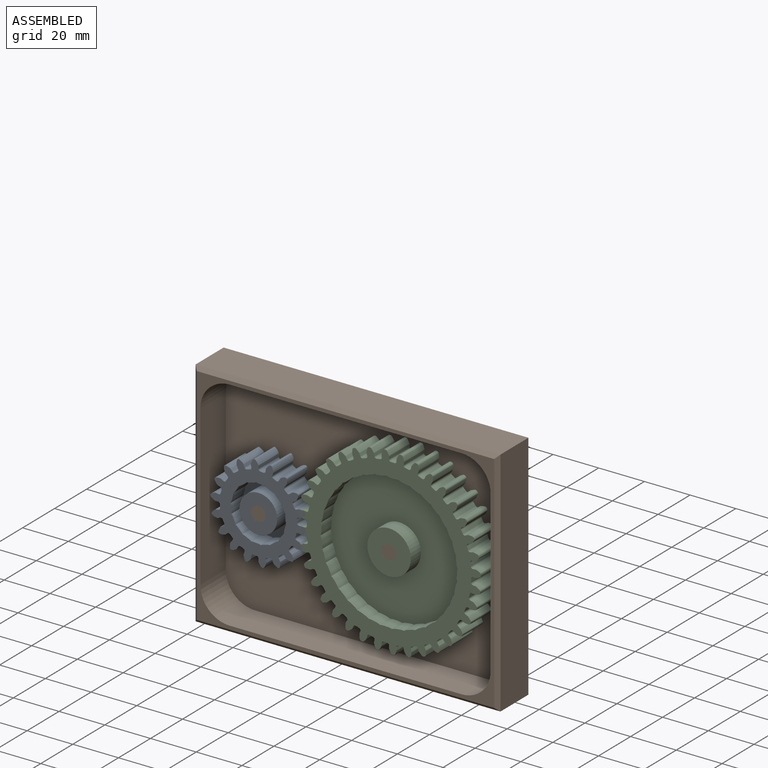
[diagram: assembled view]
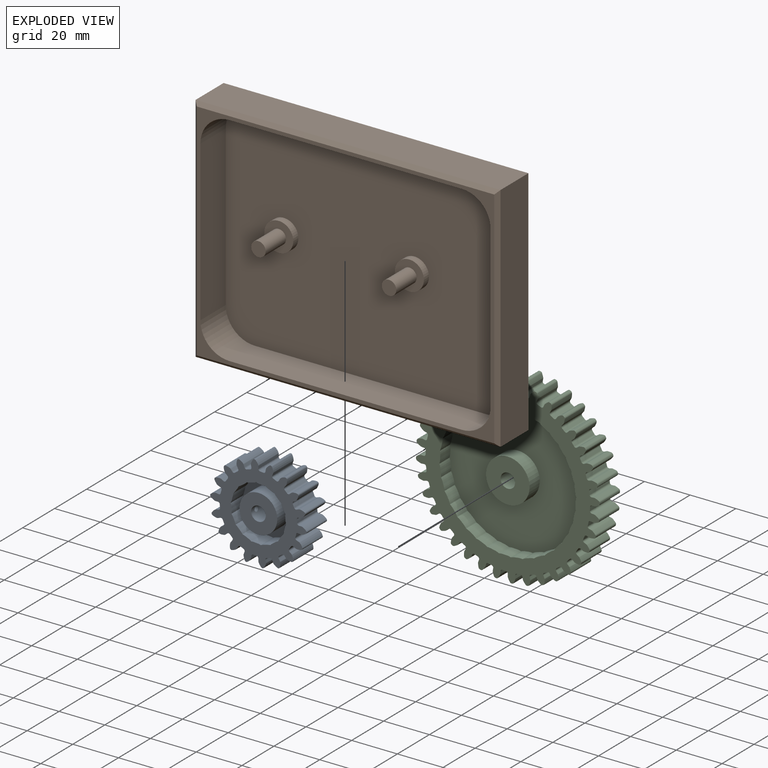
[diagram: exploded view]
GUIDED TOUR — MATED ASSEMBLY (Onshape document 0ada9106fb75ed000e74e0ef, AutoMate assembly 0ada9106fb75ed000e74e0ef_89ff9eaa9f34cbd2711dcc80_fb24fe71905f4984f1cb48bd_default)

This assembly has 3 components, labeled P0..P2 below (a component is one placed occurrence of a part; the same part can appear more than once), held together by 2 mates. A mate is a constraint between two components; its type names the relative motion it leaves free:
  REVOLUTE — leaves rotation about the listed axis free (a hinge).
Axis/direction vectors are unit vectors and 'through' points are millimeter coordinates, both in the assembly's world frame.

MATES
  1. REVOLUTE "Revolute 1": P0 <-> P1, axis (0.000, 1.000, 0.000) through (-52.00, -2.73, 3.18) mm
  2. REVOLUTE "Revolute 2": P2 <-> P1, axis (0.000, 1.000, 0.000) through (5.15, -2.73, 3.18) mm

ASSEMBLY ORDER
  1. P0 — the base component [order verified]
  2. P2 [order verified]
  3. P1 [order verified]
Order-tag legend:
  [order verified] — this step's position reverses a verified removal order: the component was checked to insert without passing through the ones already placed.

Of the 3 components, 1 carries the full construction recipe — the FeatureScript program that regenerates the part's solid from scratch; the rest are supplied as boundary geometry only.
Each toured component is shown spotlighted twice — in the assembled view, then in the exploded view, where a leader line traces a displaced component back to its assembled socket (saturated green if recipe-attached, orange if geometry-only; every other component desaturated gray) — followed by its recipe or geometry summary and the mates that hold it.
NOTE — this tour is split across 2 documents so each fits a 32k-token context. This is document 1: the component sections continue in the remaining 1 document, each repeating the header above.
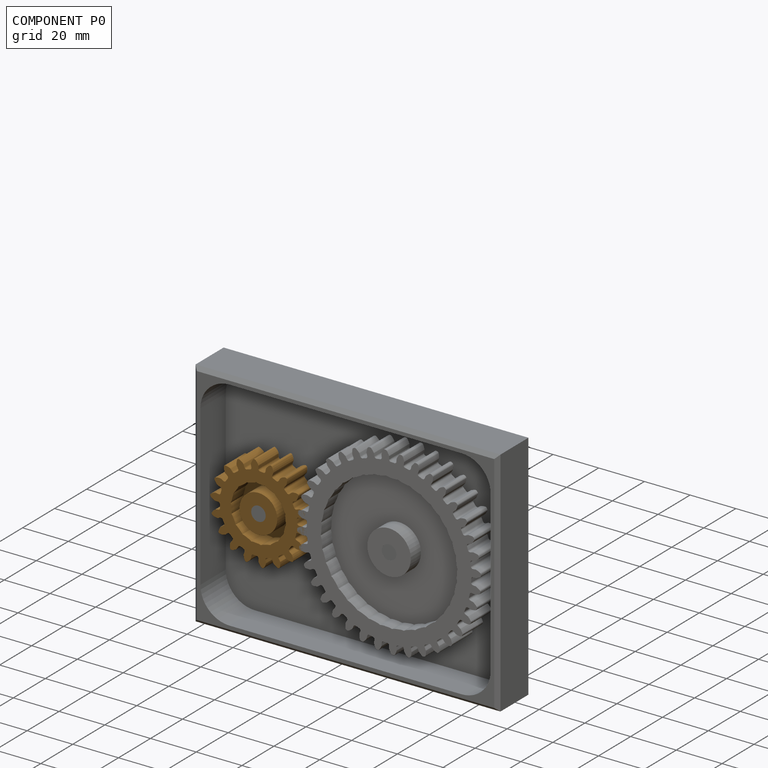
[diagram: component P0 — assembled]
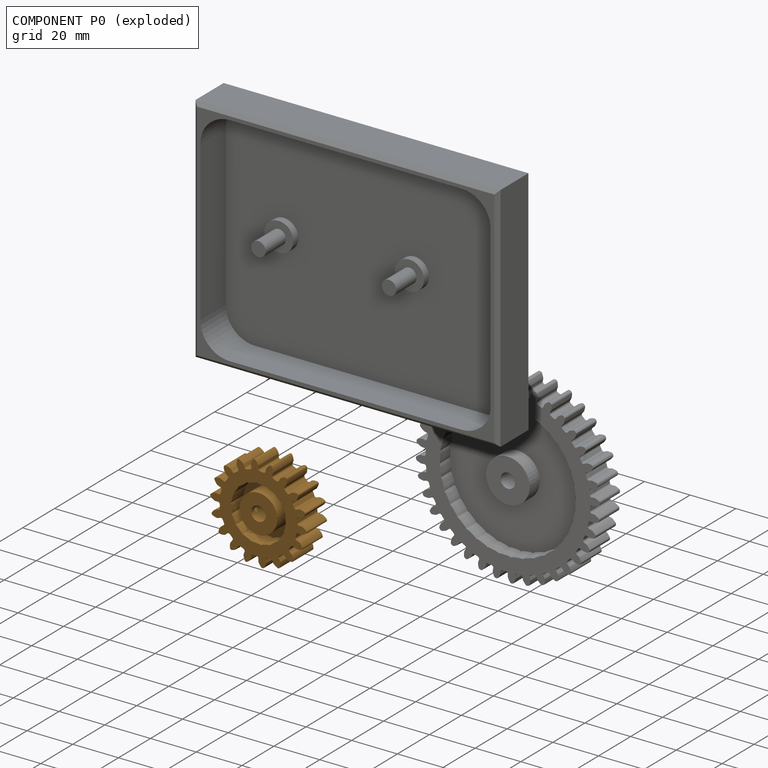
[diagram: component P0 — exploded]
COMPONENT P0 — geometry summary (no construction recipe available for this part):
  bounding box: 42.2 x 42.2 x 12.7 mm
  B-rep topology: 1 solid, 295 faces, 1748 edges
  volume: 11902 mm^3 (53% of its bounding box)
Held by: REVOLUTE mate "Revolute 1" to P1.
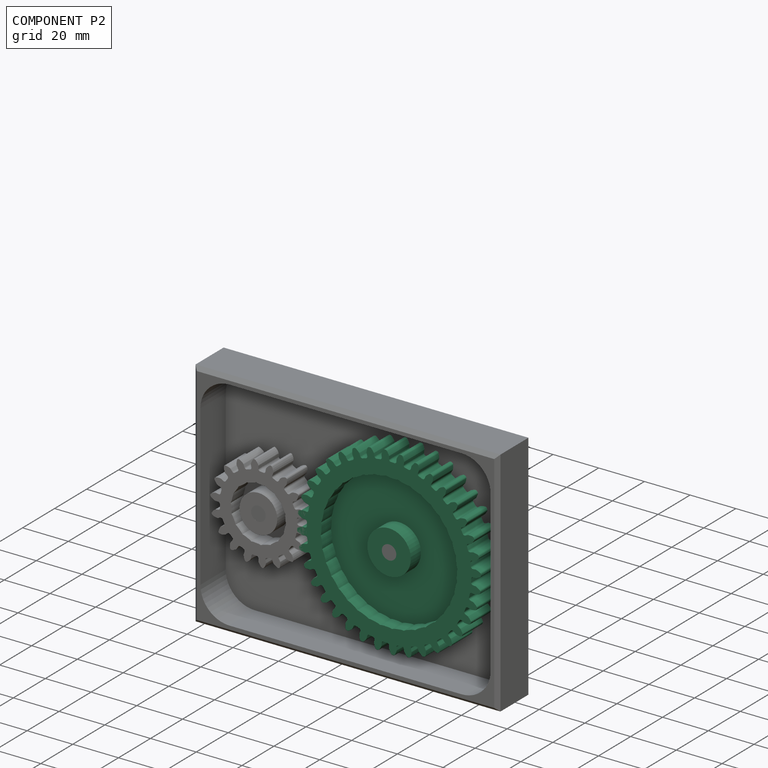
[diagram: component P2 — assembled]
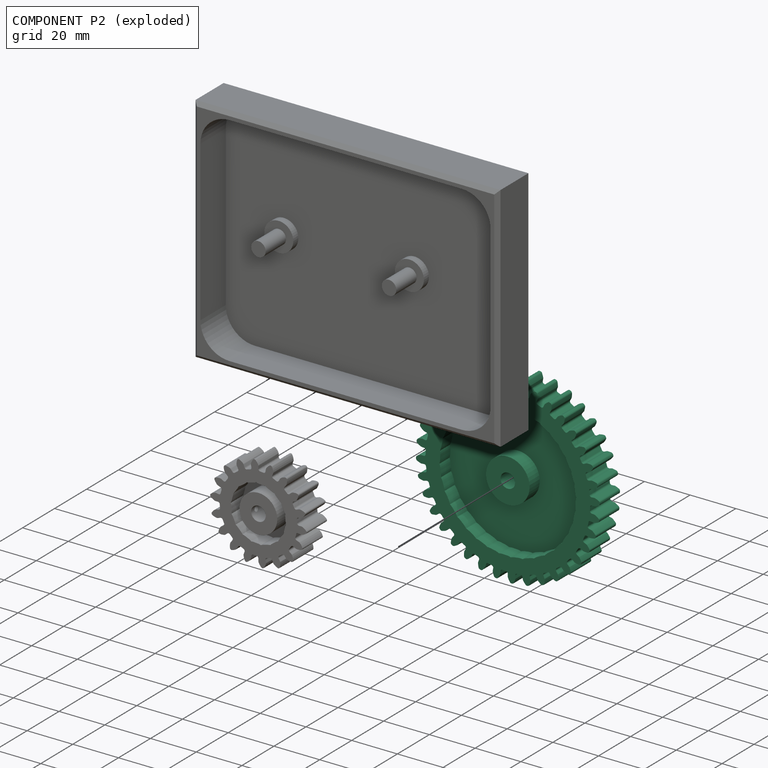
[diagram: component P2 — exploded]
COMPONENT P2 — recipe-attached (CADFS 00139900, mesh-verified: the recipe's output STEP matches this component's geometry to below the mesh-comparison resolution (tessellation chordal tolerance ~0.172 mm)).
Held by: REVOLUTE mate "Revolute 2" to P1.
Construction recipe (FeatureScript — the CAD program that rebuilds this solid; sketch coordinates are in the units given by the * unit suffixes, e.g. mm):

FeatureScript 1511;
import(path : "onshape/std/geometry.fs", version : "1511.0");
import(path : "onshape/std/common.fs", version : "1511.0");
const mm = millimeter;
const VERTEX = EntityType.VERTEX;
const EDGE = EntityType.EDGE;
const FACE = EntityType.FACE;
const BODY = EntityType.BODY;
function v(x, y){return vector(x, y);}
function OD(order){return orderDisambiguation(order);}
function OSD(set){return originalSetDisambiguation(set);}
function TD(topology){return topologyDisambiguation(topology);}
function TDD(query){return trueDependencyDisambiguation(query);}
function sQuery(a, b, c) {return sketchEntityQuery(a, b, c);}

annotation { "Feature Type Name" : "Feature", "Feature Type Description" : "" }
export const myFeature = defineFeature(function(context is Context, id is Id, definition is map)
    precondition{}
    {
        {
            assignVariable(context, id + "F0", {"name" : "CTA", "anyValue" : 5});
        }
        {
            var Q0;
            Q0=qCreatedBy(makeId("Front.planeOp"),FACE);
            var sketch = newSketch(context, id + "F1", { "sketchPlane" : qUnion([Q0])});
            skArc(sketch, "E0", {"start": v(-3.95, 35.77) * mm, "mid": v(-4.7, 35.68) * mm, "end": v(-5.44, 35.57) * mm});
            skArc(sketch, "E1.trimOffspring", {"start": v(-0.05, 38.25) * mm, "mid": v(-0.42, 39.05) * mm, "end": v(-0.86, 39.81) * mm});
            skLineSegment(sketch, "E2", {"start": v(-1.57, 40.2) * mm, "end": v(-1.75, 40.19) * mm});
            skLineSegment(sketch, "E3", {"start": v(0, 37.94) * mm, "end": v(0, 36.8) * mm});
            skLineSegment(sketch, "E4.MirrorCS", {"start": v(-1.93, 40.18) * mm, "end": v(-1.75, 40.19) * mm});
            skArc(sketch, "E5.MirrorCS", {"start": v(-3.28, 38.11) * mm, "mid": v(-2.99, 38.94) * mm, "end": v(-2.62, 39.74) * mm});
            skLineSegment(sketch, "E6.MirrorCS", {"start": v(-3.32, 37.8) * mm, "end": v(-3.22, 36.66) * mm});
            skPoint(sketch, "E7.visualSharp", {"position": v(-3.33, 37.95) * mm});
            skArc(sketch, "E7.filletArc", {"start": v(-3.28, 38.11) * mm, "mid": v(-3.31, 37.96) * mm, "end": v(-3.32, 37.8) * mm});
            skPoint(sketch, "E8.visualSharp", {"position": v(0, 38.1) * mm});
            skArc(sketch, "E8.filletArc", {"start": v(0, 37.94) * mm, "mid": v(0, 38.1) * mm, "end": v(-0.05, 38.25) * mm});
            skPoint(sketch, "E9.visualSharp", {"position": v(0, 35.98) * mm});
            skArc(sketch, "E9.filletArc", {"start": v(0, 36.8) * mm, "mid": v(0.24, 36.22) * mm, "end": v(0.82, 35.97) * mm});
            skPoint(sketch, "E10.visualSharp", {"position": v(-3.14, 35.85) * mm});
            skArc(sketch, "E10.filletArc", {"start": v(-3.95, 35.77) * mm, "mid": v(-3.4, 36.06) * mm, "end": v(-3.22, 36.66) * mm});
            skPoint(sketch, "E11.visualSharp", {"position": v(-2.39, 40.15) * mm});
            skArc(sketch, "E11.filletArc", {"start": v(-1.93, 40.18) * mm, "mid": v(-2.33, 40.05) * mm, "end": v(-2.62, 39.74) * mm});
            skPoint(sketch, "E12.visualSharp", {"position": v(-1.12, 40.2) * mm});
            skArc(sketch, "E12.filletArc", {"start": v(-0.86, 39.81) * mm, "mid": v(-1.17, 40.1) * mm, "end": v(-1.57, 40.2) * mm});
            skArc(sketch, "E13.1.0", {"start": v(-10.1, 34.54) * mm, "mid": v(-9.61, 34.92) * mm, "end": v(-9.53, 35.54) * mm});
            skLineSegment(sketch, "E13.1.1", {"start": v(-9.83, 36.65) * mm, "end": v(-9.53, 35.54) * mm});
            skArc(sketch, "E13.1.2", {"start": v(-9.85, 36.96) * mm, "mid": v(-9.7, 37.83) * mm, "end": v(-9.48, 38.68) * mm});
            skArc(sketch, "E13.1.3", {"start": v(-8.88, 39.23) * mm, "mid": v(-9.25, 39.03) * mm, "end": v(-9.48, 38.68) * mm});
            skLineSegment(sketch, "E13.1.4", {"start": v(-8.88, 39.23) * mm, "end": v(-8.7, 39.27) * mm});
            skLineSegment(sketch, "E13.1.5", {"start": v(-8.53, 39.3) * mm, "end": v(-8.7, 39.27) * mm});
            skArc(sketch, "E13.1.6", {"start": v(-7.76, 39.06) * mm, "mid": v(-8.11, 39.29) * mm, "end": v(-8.53, 39.3) * mm});
            skArc(sketch, "E13.1.7", {"start": v(-6.7, 37.66) * mm, "mid": v(-7.2, 38.39) * mm, "end": v(-7.76, 39.06) * mm});
            skLineSegment(sketch, "E13.1.8", {"start": v(-6.58, 37.37) * mm, "end": v(-6.38, 36.24) * mm});
            skArc(sketch, "E13.1.9", {"start": v(-6.38, 36.24) * mm, "mid": v(-6.05, 35.71) * mm, "end": v(-5.44, 35.57) * mm});
            skArc(sketch, "E13.1.10", {"start": v(-6.58, 37.37) * mm, "mid": v(-6.62, 37.52) * mm, "end": v(-6.7, 37.66) * mm});
            skPoint(sketch, "E13.1.11", {"position": v(-9.87, 36.8) * mm});
            skArc(sketch, "E13.1.12", {"start": v(-9.85, 36.96) * mm, "mid": v(-9.85, 36.8) * mm, "end": v(-9.83, 36.65) * mm});
            skArc(sketch, "E13.2.0", {"start": v(-15.94, 32.26) * mm, "mid": v(-15.53, 32.73) * mm, "end": v(-15.56, 33.35) * mm});
            skLineSegment(sketch, "E13.2.1", {"start": v(-16.04, 34.38) * mm, "end": v(-15.56, 33.35) * mm});
            skArc(sketch, "E13.2.2", {"start": v(-16.12, 34.7) * mm, "mid": v(-16.12, 35.57) * mm, "end": v(-16.05, 36.44) * mm});
            skArc(sketch, "E13.2.3", {"start": v(-15.56, 37.1) * mm, "mid": v(-15.89, 36.83) * mm, "end": v(-16.05, 36.44) * mm});
            skLineSegment(sketch, "E13.2.4", {"start": v(-15.56, 37.1) * mm, "end": v(-15.4, 37.16) * mm});
            skLineSegment(sketch, "E13.2.5", {"start": v(-15.23, 37.23) * mm, "end": v(-15.4, 37.16) * mm});
            skArc(sketch, "E13.2.6", {"start": v(-14.42, 37.12) * mm, "mid": v(-14.8, 37.28) * mm, "end": v(-15.23, 37.23) * mm});
            skArc(sketch, "E13.2.7", {"start": v(-13.13, 35.93) * mm, "mid": v(-13.75, 36.55) * mm, "end": v(-14.42, 37.12) * mm});
            skLineSegment(sketch, "E13.2.8", {"start": v(-12.97, 35.66) * mm, "end": v(-12.58, 34.58) * mm});
            skArc(sketch, "E13.2.9", {"start": v(-12.58, 34.58) * mm, "mid": v(-12.16, 34.12) * mm, "end": v(-11.54, 34.08) * mm});
            skArc(sketch, "E13.2.10", {"start": v(-12.97, 35.66) * mm, "mid": v(-13.04, 35.8) * mm, "end": v(-13.13, 35.93) * mm});
            skPoint(sketch, "E13.2.11", {"position": v(-16.1, 34.53) * mm});
            skArc(sketch, "E13.2.12", {"start": v(-16.12, 34.7) * mm, "mid": v(-16.1, 34.53) * mm, "end": v(-16.04, 34.38) * mm});
            skArc(sketch, "E13.3.0", {"start": v(-21.3, 29) * mm, "mid": v(-20.98, 29.53) * mm, "end": v(-21.11, 30.14) * mm});
            skLineSegment(sketch, "E13.3.1", {"start": v(-21.77, 31.08) * mm, "end": v(-21.11, 30.14) * mm});
            skArc(sketch, "E13.3.2", {"start": v(-21.9, 31.36) * mm, "mid": v(-22.06, 32.23) * mm, "end": v(-22.13, 33.1) * mm});
            skArc(sketch, "E13.3.3", {"start": v(-21.76, 33.83) * mm, "mid": v(-22.04, 33.51) * mm, "end": v(-22.13, 33.1) * mm});
            skLineSegment(sketch, "E13.3.4", {"start": v(-21.76, 33.83) * mm, "end": v(-21.61, 33.93) * mm});
            skLineSegment(sketch, "E13.3.5", {"start": v(-21.46, 34.02) * mm, "end": v(-21.61, 33.93) * mm});
            skArc(sketch, "E13.3.6", {"start": v(-20.65, 34.05) * mm, "mid": v(-21.06, 34.14) * mm, "end": v(-21.46, 34.02) * mm});
            skArc(sketch, "E13.3.7", {"start": v(-19.17, 33.1) * mm, "mid": v(-19.89, 33.61) * mm, "end": v(-20.65, 34.05) * mm});
            skLineSegment(sketch, "E13.3.8", {"start": v(-18.96, 32.86) * mm, "end": v(-18.4, 31.87) * mm});
            skArc(sketch, "E13.3.9", {"start": v(-18.4, 31.87) * mm, "mid": v(-17.9, 31.5) * mm, "end": v(-17.28, 31.56) * mm});
            skArc(sketch, "E13.3.10", {"start": v(-18.96, 32.86) * mm, "mid": v(-19.06, 33) * mm, "end": v(-19.17, 33.1) * mm});
            skPoint(sketch, "E13.3.11", {"position": v(-21.86, 31.2) * mm});
            skArc(sketch, "E13.3.12", {"start": v(-21.9, 31.36) * mm, "mid": v(-21.85, 31.21) * mm, "end": v(-21.77, 31.08) * mm});
            skArc(sketch, "E13.4.0", {"start": v(-26.01, 24.86) * mm, "mid": v(-25.79, 25.44) * mm, "end": v(-26.03, 26.01) * mm});
            skLineSegment(sketch, "E13.4.1", {"start": v(-26.84, 26.82) * mm, "end": v(-26.03, 26.01) * mm});
            skArc(sketch, "E13.4.2", {"start": v(-27.01, 27.09) * mm, "mid": v(-27.32, 27.9) * mm, "end": v(-27.55, 28.76) * mm});
            skArc(sketch, "E13.4.3", {"start": v(-27.3, 29.53) * mm, "mid": v(-27.53, 29.18) * mm, "end": v(-27.55, 28.76) * mm});
            skLineSegment(sketch, "E13.4.4", {"start": v(-27.3, 29.53) * mm, "end": v(-27.18, 29.66) * mm});
            skLineSegment(sketch, "E13.4.5", {"start": v(-27.04, 29.78) * mm, "end": v(-27.18, 29.66) * mm});
            skArc(sketch, "E13.4.6", {"start": v(-26.25, 29.95) * mm, "mid": v(-26.67, 29.97) * mm, "end": v(-27.04, 29.78) * mm});
            skArc(sketch, "E13.4.7", {"start": v(-24.63, 29.27) * mm, "mid": v(-25.42, 29.65) * mm, "end": v(-26.25, 29.95) * mm});
            skLineSegment(sketch, "E13.4.8", {"start": v(-24.38, 29.07) * mm, "end": v(-23.65, 28.2) * mm});
            skArc(sketch, "E13.4.9", {"start": v(-23.65, 28.2) * mm, "mid": v(-23.1, 27.9) * mm, "end": v(-22.5, 28.08) * mm});
            skArc(sketch, "E13.4.10", {"start": v(-24.38, 29.07) * mm, "mid": v(-24.5, 29.18) * mm, "end": v(-24.63, 29.27) * mm});
            skPoint(sketch, "E13.4.11", {"position": v(-26.95, 26.93) * mm});
            skArc(sketch, "E13.4.12", {"start": v(-27.01, 27.09) * mm, "mid": v(-26.94, 26.95) * mm, "end": v(-26.84, 26.82) * mm});
            skArc(sketch, "E13.5.0", {"start": v(-29.94, 19.97) * mm, "mid": v(-29.81, 20.58) * mm, "end": v(-30.15, 21.1) * mm});
            skLineSegment(sketch, "E13.5.1", {"start": v(-31.09, 21.76) * mm, "end": v(-30.15, 21.1) * mm});
            skArc(sketch, "E13.5.2", {"start": v(-31.3, 21.98) * mm, "mid": v(-31.75, 22.74) * mm, "end": v(-32.12, 23.54) * mm});
            skArc(sketch, "E13.5.3", {"start": v(-32.02, 24.34) * mm, "mid": v(-32.18, 23.95) * mm, "end": v(-32.12, 23.54) * mm});
            skLineSegment(sketch, "E13.5.4", {"start": v(-32.02, 24.34) * mm, "end": v(-31.91, 24.49) * mm});
            skLineSegment(sketch, "E13.5.5", {"start": v(-31.8, 24.63) * mm, "end": v(-31.91, 24.49) * mm});
            skArc(sketch, "E13.5.6", {"start": v(-31.05, 24.93) * mm, "mid": v(-31.47, 24.88) * mm, "end": v(-31.8, 24.63) * mm});
            skArc(sketch, "E13.5.7", {"start": v(-29.34, 24.55) * mm, "mid": v(-30.18, 24.78) * mm, "end": v(-31.05, 24.93) * mm});
            skLineSegment(sketch, "E13.5.8", {"start": v(-29.06, 24.4) * mm, "end": v(-28.18, 23.66) * mm});
            skArc(sketch, "E13.5.9", {"start": v(-28.18, 23.66) * mm, "mid": v(-27.6, 23.47) * mm, "end": v(-27.03, 23.75) * mm});
            skArc(sketch, "E13.5.10", {"start": v(-29.06, 24.4) * mm, "mid": v(-29.2, 24.49) * mm, "end": v(-29.34, 24.55) * mm});
            skPoint(sketch, "E13.5.11", {"position": v(-31.21, 21.85) * mm});
            skArc(sketch, "E13.5.12", {"start": v(-31.3, 21.98) * mm, "mid": v(-31.2, 21.86) * mm, "end": v(-31.09, 21.76) * mm});
            skArc(sketch, "E13.6.0", {"start": v(-32.95, 14.46) * mm, "mid": v(-32.93, 15.09) * mm, "end": v(-33.36, 15.54) * mm});
            skLineSegment(sketch, "E13.6.1", {"start": v(-34.4, 16.03) * mm, "end": v(-33.36, 15.54) * mm});
            skArc(sketch, "E13.6.2", {"start": v(-34.65, 16.21) * mm, "mid": v(-35.22, 16.88) * mm, "end": v(-35.72, 17.6) * mm});
            skArc(sketch, "E13.6.3", {"start": v(-35.76, 18.41) * mm, "mid": v(-35.85, 18) * mm, "end": v(-35.72, 17.6) * mm});
            skLineSegment(sketch, "E13.6.4", {"start": v(-35.76, 18.41) * mm, "end": v(-35.68, 18.57) * mm});
            skLineSegment(sketch, "E13.6.5", {"start": v(-35.6, 18.73) * mm, "end": v(-35.68, 18.57) * mm});
            skArc(sketch, "E13.6.6", {"start": v(-34.9, 19.16) * mm, "mid": v(-35.3, 19.04) * mm, "end": v(-35.6, 18.73) * mm});
            skArc(sketch, "E13.6.7", {"start": v(-33.15, 19.08) * mm, "mid": v(-34.03, 19.16) * mm, "end": v(-34.9, 19.16) * mm});
            skLineSegment(sketch, "E13.6.8", {"start": v(-32.86, 18.98) * mm, "end": v(-31.86, 18.4) * mm});
            skArc(sketch, "E13.6.9", {"start": v(-31.86, 18.4) * mm, "mid": v(-31.25, 18.32) * mm, "end": v(-30.75, 18.7) * mm});
            skArc(sketch, "E13.6.10", {"start": v(-32.86, 18.98) * mm, "mid": v(-33, 19.04) * mm, "end": v(-33.15, 19.08) * mm});
            skPoint(sketch, "E13.6.11", {"position": v(-34.53, 16.1) * mm});
            skArc(sketch, "E13.6.12", {"start": v(-34.65, 16.21) * mm, "mid": v(-34.53, 16.1) * mm, "end": v(-34.4, 16.03) * mm});
            skArc(sketch, "E13.7.0", {"start": v(-34.96, 8.52) * mm, "mid": v(-35.05, 9.14) * mm, "end": v(-35.55, 9.52) * mm});
            skLineSegment(sketch, "E13.7.1", {"start": v(-36.65, 9.81) * mm, "end": v(-35.55, 9.52) * mm});
            skArc(sketch, "E13.7.2", {"start": v(-36.94, 9.95) * mm, "mid": v(-37.61, 10.51) * mm, "end": v(-38.23, 11.13) * mm});
            skArc(sketch, "E13.7.3", {"start": v(-38.42, 11.92) * mm, "mid": v(-38.43, 11.5) * mm, "end": v(-38.23, 11.13) * mm});
            skLineSegment(sketch, "E13.7.4", {"start": v(-38.42, 11.92) * mm, "end": v(-38.36, 12.1) * mm});
            skLineSegment(sketch, "E13.7.5", {"start": v(-38.3, 12.27) * mm, "end": v(-38.36, 12.1) * mm});
            skArc(sketch, "E13.7.6", {"start": v(-37.7, 12.81) * mm, "mid": v(-38.08, 12.62) * mm, "end": v(-38.3, 12.27) * mm});
            skArc(sketch, "E13.7.7", {"start": v(-35.96, 13.03) * mm, "mid": v(-36.84, 12.96) * mm, "end": v(-37.7, 12.81) * mm});
            skLineSegment(sketch, "E13.7.8", {"start": v(-35.65, 12.99) * mm, "end": v(-34.58, 12.6) * mm});
            skArc(sketch, "E13.7.9", {"start": v(-34.58, 12.6) * mm, "mid": v(-33.95, 12.62) * mm, "end": v(-33.53, 13.07) * mm});
            skArc(sketch, "E13.7.10", {"start": v(-35.65, 12.99) * mm, "mid": v(-35.8, 13.03) * mm, "end": v(-35.96, 13.03) * mm});
            skPoint(sketch, "E13.7.11", {"position": v(-36.8, 9.85) * mm});
            skArc(sketch, "E13.7.12", {"start": v(-36.94, 9.95) * mm, "mid": v(-36.8, 9.87) * mm, "end": v(-36.65, 9.81) * mm});
            skArc(sketch, "E13.8.0", {"start": v(-35.9, 2.32) * mm, "mid": v(-36.1, 2.91) * mm, "end": v(-36.66, 3.2) * mm});
            skLineSegment(sketch, "E13.8.1", {"start": v(-37.8, 3.3) * mm, "end": v(-36.66, 3.2) * mm});
            skArc(sketch, "E13.8.2", {"start": v(-38.1, 3.39) * mm, "mid": v(-38.87, 3.82) * mm, "end": v(-39.59, 4.32) * mm});
            skArc(sketch, "E13.8.3", {"start": v(-39.9, 5.07) * mm, "mid": v(-39.84, 4.66) * mm, "end": v(-39.59, 4.32) * mm});
            skLineSegment(sketch, "E13.8.4", {"start": v(-39.9, 5.07) * mm, "end": v(-39.88, 5.25) * mm});
            skLineSegment(sketch, "E13.8.5", {"start": v(-39.86, 5.43) * mm, "end": v(-39.88, 5.25) * mm});
            skArc(sketch, "E13.8.6", {"start": v(-39.36, 6.07) * mm, "mid": v(-39.7, 5.82) * mm, "end": v(-39.86, 5.43) * mm});
            skArc(sketch, "E13.8.7", {"start": v(-37.68, 6.6) * mm, "mid": v(-38.53, 6.37) * mm, "end": v(-39.36, 6.07) * mm});
            skLineSegment(sketch, "E13.8.8", {"start": v(-37.37, 6.6) * mm, "end": v(-36.24, 6.4) * mm});
            skArc(sketch, "E13.8.9", {"start": v(-36.24, 6.4) * mm, "mid": v(-35.63, 6.53) * mm, "end": v(-35.29, 7.05) * mm});
            skArc(sketch, "E13.8.10", {"start": v(-37.37, 6.6) * mm, "mid": v(-37.52, 6.6) * mm, "end": v(-37.68, 6.6) * mm});
            skPoint(sketch, "E13.8.11", {"position": v(-37.96, 3.31) * mm});
            skArc(sketch, "E13.8.12", {"start": v(-38.1, 3.39) * mm, "mid": v(-37.96, 3.33) * mm, "end": v(-37.8, 3.3) * mm});
            skArc(sketch, "E13.9.0", {"start": v(-35.77, -3.95) * mm, "mid": v(-36.06, -3.4) * mm, "end": v(-36.66, -3.22) * mm});
            skLineSegment(sketch, "E13.9.1", {"start": v(-37.8, -3.32) * mm, "end": v(-36.66, -3.22) * mm});
            skArc(sketch, "E13.9.2", {"start": v(-38.11, -3.28) * mm, "mid": v(-38.94, -2.99) * mm, "end": v(-39.74, -2.62) * mm});
            skArc(sketch, "E13.9.3", {"start": v(-40.18, -1.93) * mm, "mid": v(-40.05, -2.33) * mm, "end": v(-39.74, -2.62) * mm});
            skLineSegment(sketch, "E13.9.4", {"start": v(-40.18, -1.93) * mm, "end": v(-40.19, -1.75) * mm});
            skLineSegment(sketch, "E13.9.5", {"start": v(-40.2, -1.57) * mm, "end": v(-40.19, -1.75) * mm});
            skArc(sketch, "E13.9.6", {"start": v(-39.81, -0.86) * mm, "mid": v(-40.1, -1.17) * mm, "end": v(-40.2, -1.57) * mm});
            skArc(sketch, "E13.9.7", {"start": v(-38.25, -0.05) * mm, "mid": v(-39.05, -0.42) * mm, "end": v(-39.81, -0.86) * mm});
            skLineSegment(sketch, "E13.9.8", {"start": v(-37.94, 0) * mm, "end": v(-36.8, 0) * mm});
            skArc(sketch, "E13.9.9", {"start": v(-36.8, 0) * mm, "mid": v(-36.22, 0.24) * mm, "end": v(-35.97, 0.82) * mm});
            skArc(sketch, "E13.9.10", {"start": v(-37.94, 0) * mm, "mid": v(-38.1, 0) * mm, "end": v(-38.25, -0.05) * mm});
            skPoint(sketch, "E13.9.11", {"position": v(-37.95, -3.33) * mm});
            skArc(sketch, "E13.9.12", {"start": v(-38.11, -3.28) * mm, "mid": v(-37.96, -3.31) * mm, "end": v(-37.8, -3.32) * mm});
            skArc(sketch, "E13.10.0", {"start": v(-34.54, -10.1) * mm, "mid": v(-34.92, -9.61) * mm, "end": v(-35.54, -9.53) * mm});
            skLineSegment(sketch, "E13.10.1", {"start": v(-36.65, -9.83) * mm, "end": v(-35.54, -9.53) * mm});
            skArc(sketch, "E13.10.2", {"start": v(-36.96, -9.85) * mm, "mid": v(-37.83, -9.7) * mm, "end": v(-38.68, -9.48) * mm});
            skArc(sketch, "E13.10.3", {"start": v(-39.23, -8.88) * mm, "mid": v(-39.03, -9.25) * mm, "end": v(-38.68, -9.48) * mm});
            skLineSegment(sketch, "E13.10.4", {"start": v(-39.23, -8.88) * mm, "end": v(-39.27, -8.7) * mm});
            skLineSegment(sketch, "E13.10.5", {"start": v(-39.3, -8.53) * mm, "end": v(-39.27, -8.7) * mm});
            skArc(sketch, "E13.10.6", {"start": v(-39.06, -7.76) * mm, "mid": v(-39.29, -8.11) * mm, "end": v(-39.3, -8.53) * mm});
            skArc(sketch, "E13.10.7", {"start": v(-37.66, -6.7) * mm, "mid": v(-38.39, -7.2) * mm, "end": v(-39.06, -7.76) * mm});
            skLineSegment(sketch, "E13.10.8", {"start": v(-37.37, -6.58) * mm, "end": v(-36.24, -6.38) * mm});
            skArc(sketch, "E13.10.9", {"start": v(-36.24, -6.38) * mm, "mid": v(-35.71, -6.05) * mm, "end": v(-35.57, -5.44) * mm});
            skArc(sketch, "E13.10.10", {"start": v(-37.37, -6.58) * mm, "mid": v(-37.52, -6.62) * mm, "end": v(-37.66, -6.7) * mm});
            skPoint(sketch, "E13.10.11", {"position": v(-36.8, -9.87) * mm});
            skArc(sketch, "E13.10.12", {"start": v(-36.96, -9.85) * mm, "mid": v(-36.8, -9.85) * mm, "end": v(-36.65, -9.83) * mm});
            skArc(sketch, "E13.11.0", {"start": v(-32.26, -15.94) * mm, "mid": v(-32.73, -15.53) * mm, "end": v(-33.35, -15.56) * mm});
            skLineSegment(sketch, "E13.11.1", {"start": v(-34.38, -16.04) * mm, "end": v(-33.35, -15.56) * mm});
            skArc(sketch, "E13.11.2", {"start": v(-34.7, -16.12) * mm, "mid": v(-35.57, -16.12) * mm, "end": v(-36.44, -16.05) * mm});
            skArc(sketch, "E13.11.3", {"start": v(-37.1, -15.56) * mm, "mid": v(-36.83, -15.89) * mm, "end": v(-36.44, -16.05) * mm});
            skLineSegment(sketch, "E13.11.4", {"start": v(-37.1, -15.56) * mm, "end": v(-37.16, -15.4) * mm});
            skLineSegment(sketch, "E13.11.5", {"start": v(-37.23, -15.23) * mm, "end": v(-37.16, -15.4) * mm});
            skArc(sketch, "E13.11.6", {"start": v(-37.12, -14.42) * mm, "mid": v(-37.28, -14.8) * mm, "end": v(-37.23, -15.23) * mm});
            skArc(sketch, "E13.11.7", {"start": v(-35.93, -13.13) * mm, "mid": v(-36.55, -13.75) * mm, "end": v(-37.12, -14.42) * mm});
            skLineSegment(sketch, "E13.11.8", {"start": v(-35.66, -12.97) * mm, "end": v(-34.58, -12.58) * mm});
            skArc(sketch, "E13.11.9", {"start": v(-34.58, -12.58) * mm, "mid": v(-34.12, -12.16) * mm, "end": v(-34.08, -11.54) * mm});
            skArc(sketch, "E13.11.10", {"start": v(-35.66, -12.97) * mm, "mid": v(-35.8, -13.04) * mm, "end": v(-35.93, -13.13) * mm});
            skPoint(sketch, "E13.11.11", {"position": v(-34.53, -16.1) * mm});
            skArc(sketch, "E13.11.12", {"start": v(-34.7, -16.12) * mm, "mid": v(-34.53, -16.1) * mm, "end": v(-34.38, -16.04) * mm});
            skArc(sketch, "E13.12.0", {"start": v(-29, -21.3) * mm, "mid": v(-29.53, -20.98) * mm, "end": v(-30.14, -21.11) * mm});
            skLineSegment(sketch, "E13.12.1", {"start": v(-31.08, -21.77) * mm, "end": v(-30.14, -21.11) * mm});
            skArc(sketch, "E13.12.2", {"start": v(-31.36, -21.9) * mm, "mid": v(-32.23, -22.06) * mm, "end": v(-33.1, -22.13) * mm});
            skArc(sketch, "E13.12.3", {"start": v(-33.83, -21.76) * mm, "mid": v(-33.51, -22.04) * mm, "end": v(-33.1, -22.13) * mm});
            skLineSegment(sketch, "E13.12.4", {"start": v(-33.83, -21.76) * mm, "end": v(-33.93, -21.61) * mm});
            skLineSegment(sketch, "E13.12.5", {"start": v(-34.02, -21.46) * mm, "end": v(-33.93, -21.61) * mm});
            skArc(sketch, "E13.12.6", {"start": v(-34.05, -20.65) * mm, "mid": v(-34.14, -21.06) * mm, "end": v(-34.02, -21.46) * mm});
            skArc(sketch, "E13.12.7", {"start": v(-33.1, -19.17) * mm, "mid": v(-33.61, -19.89) * mm, "end": v(-34.05, -20.65) * mm});
            skLineSegment(sketch, "E13.12.8", {"start": v(-32.86, -18.96) * mm, "end": v(-31.87, -18.4) * mm});
            skArc(sketch, "E13.12.9", {"start": v(-31.87, -18.4) * mm, "mid": v(-31.5, -17.9) * mm, "end": v(-31.56, -17.28) * mm});
            skArc(sketch, "E13.12.10", {"start": v(-32.86, -18.96) * mm, "mid": v(-33, -19.06) * mm, "end": v(-33.1, -19.17) * mm});
            skPoint(sketch, "E13.12.11", {"position": v(-31.2, -21.86) * mm});
            skArc(sketch, "E13.12.12", {"start": v(-31.36, -21.9) * mm, "mid": v(-31.21, -21.85) * mm, "end": v(-31.08, -21.77) * mm});
            skArc(sketch, "E13.13.0", {"start": v(-24.86, -26.01) * mm, "mid": v(-25.44, -25.79) * mm, "end": v(-26.01, -26.03) * mm});
            skLineSegment(sketch, "E13.13.1", {"start": v(-26.82, -26.84) * mm, "end": v(-26.01, -26.03) * mm});
            skArc(sketch, "E13.13.2", {"start": v(-27.09, -27.01) * mm, "mid": v(-27.9, -27.32) * mm, "end": v(-28.76, -27.55) * mm});
            skArc(sketch, "E13.13.3", {"start": v(-29.53, -27.3) * mm, "mid": v(-29.18, -27.53) * mm, "end": v(-28.76, -27.55) * mm});
            skLineSegment(sketch, "E13.13.4", {"start": v(-29.53, -27.3) * mm, "end": v(-29.66, -27.18) * mm});
            skLineSegment(sketch, "E13.13.5", {"start": v(-29.78, -27.04) * mm, "end": v(-29.66, -27.18) * mm});
            skArc(sketch, "E13.13.6", {"start": v(-29.95, -26.25) * mm, "mid": v(-29.97, -26.67) * mm, "end": v(-29.78, -27.04) * mm});
            skArc(sketch, "E13.13.7", {"start": v(-29.27, -24.63) * mm, "mid": v(-29.65, -25.42) * mm, "end": v(-29.95, -26.25) * mm});
            skLineSegment(sketch, "E13.13.8", {"start": v(-29.07, -24.38) * mm, "end": v(-28.2, -23.65) * mm});
            skArc(sketch, "E13.13.9", {"start": v(-28.2, -23.65) * mm, "mid": v(-27.9, -23.1) * mm, "end": v(-28.08, -22.5) * mm});
            skArc(sketch, "E13.13.10", {"start": v(-29.07, -24.38) * mm, "mid": v(-29.18, -24.5) * mm, "end": v(-29.27, -24.63) * mm});
            skPoint(sketch, "E13.13.11", {"position": v(-26.93, -26.95) * mm});
            skArc(sketch, "E13.13.12", {"start": v(-27.09, -27.01) * mm, "mid": v(-26.95, -26.94) * mm, "end": v(-26.82, -26.84) * mm});
            skArc(sketch, "E13.14.0", {"start": v(-19.97, -29.94) * mm, "mid": v(-20.58, -29.81) * mm, "end": v(-21.1, -30.15) * mm});
            skLineSegment(sketch, "E13.14.1", {"start": v(-21.76, -31.09) * mm, "end": v(-21.1, -30.15) * mm});
            skArc(sketch, "E13.14.2", {"start": v(-21.98, -31.3) * mm, "mid": v(-22.74, -31.75) * mm, "end": v(-23.54, -32.12) * mm});
            skArc(sketch, "E13.14.3", {"start": v(-24.34, -32.02) * mm, "mid": v(-23.95, -32.18) * mm, "end": v(-23.54, -32.12) * mm});
            skLineSegment(sketch, "E13.14.4", {"start": v(-24.34, -32.02) * mm, "end": v(-24.49, -31.91) * mm});
            skLineSegment(sketch, "E13.14.5", {"start": v(-24.63, -31.8) * mm, "end": v(-24.49, -31.91) * mm});
            skArc(sketch, "E13.14.6", {"start": v(-24.93, -31.05) * mm, "mid": v(-24.88, -31.47) * mm, "end": v(-24.63, -31.8) * mm});
            skArc(sketch, "E13.14.7", {"start": v(-24.55, -29.34) * mm, "mid": v(-24.78, -30.18) * mm, "end": v(-24.93, -31.05) * mm});
            skLineSegment(sketch, "E13.14.8", {"start": v(-24.4, -29.06) * mm, "end": v(-23.66, -28.18) * mm});
            skArc(sketch, "E13.14.9", {"start": v(-23.66, -28.18) * mm, "mid": v(-23.47, -27.6) * mm, "end": v(-23.75, -27.03) * mm});
            skArc(sketch, "E13.14.10", {"start": v(-24.4, -29.06) * mm, "mid": v(-24.49, -29.2) * mm, "end": v(-24.55, -29.34) * mm});
            skPoint(sketch, "E13.14.11", {"position": v(-21.85, -31.21) * mm});
            skArc(sketch, "E13.14.12", {"start": v(-21.98, -31.3) * mm, "mid": v(-21.86, -31.2) * mm, "end": v(-21.76, -31.09) * mm});
            skArc(sketch, "E13.15.0", {"start": v(-14.46, -32.95) * mm, "mid": v(-15.09, -32.93) * mm, "end": v(-15.54, -33.36) * mm});
            skLineSegment(sketch, "E13.15.1", {"start": v(-16.03, -34.4) * mm, "end": v(-15.54, -33.36) * mm});
            skArc(sketch, "E13.15.2", {"start": v(-16.21, -34.65) * mm, "mid": v(-16.88, -35.22) * mm, "end": v(-17.6, -35.72) * mm});
            skArc(sketch, "E13.15.3", {"start": v(-18.41, -35.76) * mm, "mid": v(-18, -35.85) * mm, "end": v(-17.6, -35.72) * mm});
            skLineSegment(sketch, "E13.15.4", {"start": v(-18.41, -35.76) * mm, "end": v(-18.57, -35.68) * mm});
            skLineSegment(sketch, "E13.15.5", {"start": v(-18.73, -35.6) * mm, "end": v(-18.57, -35.68) * mm});
            skArc(sketch, "E13.15.6", {"start": v(-19.16, -34.9) * mm, "mid": v(-19.04, -35.3) * mm, "end": v(-18.73, -35.6) * mm});
            skArc(sketch, "E13.15.7", {"start": v(-19.08, -33.15) * mm, "mid": v(-19.16, -34.03) * mm, "end": v(-19.16, -34.9) * mm});
            skLineSegment(sketch, "E13.15.8", {"start": v(-18.98, -32.86) * mm, "end": v(-18.4, -31.86) * mm});
            skArc(sketch, "E13.15.9", {"start": v(-18.4, -31.86) * mm, "mid": v(-18.32, -31.25) * mm, "end": v(-18.7, -30.75) * mm});
            skArc(sketch, "E13.15.10", {"start": v(-18.98, -32.86) * mm, "mid": v(-19.04, -33) * mm, "end": v(-19.08, -33.15) * mm});
            skPoint(sketch, "E13.15.11", {"position": v(-16.1, -34.53) * mm});
            skArc(sketch, "E13.15.12", {"start": v(-16.21, -34.65) * mm, "mid": v(-16.1, -34.53) * mm, "end": v(-16.03, -34.4) * mm});
            skArc(sketch, "E13.16.0", {"start": v(-8.52, -34.96) * mm, "mid": v(-9.14, -35.05) * mm, "end": v(-9.52, -35.55) * mm});
            skLineSegment(sketch, "E13.16.1", {"start": v(-9.81, -36.65) * mm, "end": v(-9.52, -35.55) * mm});
            skArc(sketch, "E13.16.2", {"start": v(-9.95, -36.94) * mm, "mid": v(-10.51, -37.61) * mm, "end": v(-11.13, -38.23) * mm});
            skArc(sketch, "E13.16.3", {"start": v(-11.92, -38.42) * mm, "mid": v(-11.5, -38.43) * mm, "end": v(-11.13, -38.23) * mm});
            skLineSegment(sketch, "E13.16.4", {"start": v(-11.92, -38.42) * mm, "end": v(-12.1, -38.36) * mm});
            skLineSegment(sketch, "E13.16.5", {"start": v(-12.27, -38.3) * mm, "end": v(-12.1, -38.36) * mm});
            skArc(sketch, "E13.16.6", {"start": v(-12.81, -37.7) * mm, "mid": v(-12.62, -38.08) * mm, "end": v(-12.27, -38.3) * mm});
            skArc(sketch, "E13.16.7", {"start": v(-13.03, -35.96) * mm, "mid": v(-12.96, -36.84) * mm, "end": v(-12.81, -37.7) * mm});
            skLineSegment(sketch, "E13.16.8", {"start": v(-12.99, -35.65) * mm, "end": v(-12.6, -34.58) * mm});
            skArc(sketch, "E13.16.9", {"start": v(-12.6, -34.58) * mm, "mid": v(-12.62, -33.95) * mm, "end": v(-13.07, -33.53) * mm});
            skArc(sketch, "E13.16.10", {"start": v(-12.99, -35.65) * mm, "mid": v(-13.03, -35.8) * mm, "end": v(-13.03, -35.96) * mm});
            skPoint(sketch, "E13.16.11", {"position": v(-9.85, -36.8) * mm});
            skArc(sketch, "E13.16.12", {"start": v(-9.95, -36.94) * mm, "mid": v(-9.87, -36.8) * mm, "end": v(-9.81, -36.65) * mm});
            skArc(sketch, "E13.17.0", {"start": v(-2.32, -35.9) * mm, "mid": v(-2.91, -36.1) * mm, "end": v(-3.2, -36.66) * mm});
            skLineSegment(sketch, "E13.17.1", {"start": v(-3.3, -37.8) * mm, "end": v(-3.2, -36.66) * mm});
            skArc(sketch, "E13.17.2", {"start": v(-3.39, -38.1) * mm, "mid": v(-3.82, -38.87) * mm, "end": v(-4.32, -39.59) * mm});
            skArc(sketch, "E13.17.3", {"start": v(-5.07, -39.9) * mm, "mid": v(-4.66, -39.84) * mm, "end": v(-4.32, -39.59) * mm});
            skLineSegment(sketch, "E13.17.4", {"start": v(-5.07, -39.9) * mm, "end": v(-5.25, -39.88) * mm});
            skLineSegment(sketch, "E13.17.5", {"start": v(-5.43, -39.86) * mm, "end": v(-5.25, -39.88) * mm});
            skArc(sketch, "E13.17.6", {"start": v(-6.07, -39.36) * mm, "mid": v(-5.82, -39.7) * mm, "end": v(-5.43, -39.86) * mm});
            skArc(sketch, "E13.17.7", {"start": v(-6.6, -37.68) * mm, "mid": v(-6.37, -38.53) * mm, "end": v(-6.07, -39.36) * mm});
            skLineSegment(sketch, "E13.17.8", {"start": v(-6.6, -37.37) * mm, "end": v(-6.4, -36.24) * mm});
            skArc(sketch, "E13.17.9", {"start": v(-6.4, -36.24) * mm, "mid": v(-6.53, -35.63) * mm, "end": v(-7.05, -35.29) * mm});
            skArc(sketch, "E13.17.10", {"start": v(-6.6, -37.37) * mm, "mid": v(-6.6, -37.52) * mm, "end": v(-6.6, -37.68) * mm});
            skPoint(sketch, "E13.17.11", {"position": v(-3.31, -37.96) * mm});
            skArc(sketch, "E13.17.12", {"start": v(-3.39, -38.1) * mm, "mid": v(-3.33, -37.96) * mm, "end": v(-3.3, -37.8) * mm});
            skArc(sketch, "E13.18.0", {"start": v(3.95, -35.77) * mm, "mid": v(3.4, -36.06) * mm, "end": v(3.22, -36.66) * mm});
            skLineSegment(sketch, "E13.18.1", {"start": v(3.32, -37.8) * mm, "end": v(3.22, -36.66) * mm});
            skArc(sketch, "E13.18.2", {"start": v(3.28, -38.11) * mm, "mid": v(2.99, -38.94) * mm, "end": v(2.62, -39.74) * mm});
            skArc(sketch, "E13.18.3", {"start": v(1.93, -40.18) * mm, "mid": v(2.33, -40.05) * mm, "end": v(2.62, -39.74) * mm});
            skLineSegment(sketch, "E13.18.4", {"start": v(1.93, -40.18) * mm, "end": v(1.75, -40.19) * mm});
            skLineSegment(sketch, "E13.18.5", {"start": v(1.57, -40.2) * mm, "end": v(1.75, -40.19) * mm});
            skArc(sketch, "E13.18.6", {"start": v(0.86, -39.81) * mm, "mid": v(1.17, -40.1) * mm, "end": v(1.57, -40.2) * mm});
            skArc(sketch, "E13.18.7", {"start": v(0.05, -38.25) * mm, "mid": v(0.42, -39.05) * mm, "end": v(0.86, -39.81) * mm});
            skLineSegment(sketch, "E13.18.8", {"start": v(0, -37.94) * mm, "end": v(0, -36.8) * mm});
            skArc(sketch, "E13.18.9", {"start": v(0, -36.8) * mm, "mid": v(-0.24, -36.22) * mm, "end": v(-0.82, -35.97) * mm});
            skArc(sketch, "E13.18.10", {"start": v(0, -37.94) * mm, "mid": v(0, -38.1) * mm, "end": v(0.05, -38.25) * mm});
            skPoint(sketch, "E13.18.11", {"position": v(3.33, -37.95) * mm});
            skArc(sketch, "E13.18.12", {"start": v(3.28, -38.11) * mm, "mid": v(3.31, -37.96) * mm, "end": v(3.32, -37.8) * mm});
            skArc(sketch, "E13.19.0", {"start": v(10.1, -34.54) * mm, "mid": v(9.61, -34.92) * mm, "end": v(9.53, -35.54) * mm});
            skLineSegment(sketch, "E13.19.1", {"start": v(9.83, -36.65) * mm, "end": v(9.53, -35.54) * mm});
            skArc(sketch, "E13.19.2", {"start": v(9.85, -36.96) * mm, "mid": v(9.7, -37.83) * mm, "end": v(9.48, -38.68) * mm});
            skArc(sketch, "E13.19.3", {"start": v(8.88, -39.23) * mm, "mid": v(9.25, -39.03) * mm, "end": v(9.48, -38.68) * mm});
            skLineSegment(sketch, "E13.19.4", {"start": v(8.88, -39.23) * mm, "end": v(8.7, -39.27) * mm});
            skLineSegment(sketch, "E13.19.5", {"start": v(8.53, -39.3) * mm, "end": v(8.7, -39.27) * mm});
            skArc(sketch, "E13.19.6", {"start": v(7.76, -39.06) * mm, "mid": v(8.11, -39.29) * mm, "end": v(8.53, -39.3) * mm});
            skArc(sketch, "E13.19.7", {"start": v(6.7, -37.66) * mm, "mid": v(7.2, -38.39) * mm, "end": v(7.76, -39.06) * mm});
            skLineSegment(sketch, "E13.19.8", {"start": v(6.58, -37.37) * mm, "end": v(6.38, -36.24) * mm});
            skArc(sketch, "E13.19.9", {"start": v(6.38, -36.24) * mm, "mid": v(6.05, -35.71) * mm, "end": v(5.44, -35.57) * mm});
            skArc(sketch, "E13.19.10", {"start": v(6.58, -37.37) * mm, "mid": v(6.62, -37.52) * mm, "end": v(6.7, -37.66) * mm});
            skPoint(sketch, "E13.19.11", {"position": v(9.87, -36.8) * mm});
            skArc(sketch, "E13.19.12", {"start": v(9.85, -36.96) * mm, "mid": v(9.85, -36.8) * mm, "end": v(9.83, -36.65) * mm});
            skArc(sketch, "E13.20.0", {"start": v(15.94, -32.26) * mm, "mid": v(15.53, -32.73) * mm, "end": v(15.56, -33.35) * mm});
            skLineSegment(sketch, "E13.20.1", {"start": v(16.04, -34.38) * mm, "end": v(15.56, -33.35) * mm});
            skArc(sketch, "E13.20.2", {"start": v(16.12, -34.7) * mm, "mid": v(16.12, -35.57) * mm, "end": v(16.05, -36.44) * mm});
            skArc(sketch, "E13.20.3", {"start": v(15.56, -37.1) * mm, "mid": v(15.89, -36.83) * mm, "end": v(16.05, -36.44) * mm});
            skLineSegment(sketch, "E13.20.4", {"start": v(15.56, -37.1) * mm, "end": v(15.4, -37.16) * mm});
            skLineSegment(sketch, "E13.20.5", {"start": v(15.23, -37.23) * mm, "end": v(15.4, -37.16) * mm});
            skArc(sketch, "E13.20.6", {"start": v(14.42, -37.12) * mm, "mid": v(14.8, -37.28) * mm, "end": v(15.23, -37.23) * mm});
            skArc(sketch, "E13.20.7", {"start": v(13.13, -35.93) * mm, "mid": v(13.75, -36.55) * mm, "end": v(14.42, -37.12) * mm});
            skLineSegment(sketch, "E13.20.8", {"start": v(12.97, -35.66) * mm, "end": v(12.58, -34.58) * mm});
            skArc(sketch, "E13.20.9", {"start": v(12.58, -34.58) * mm, "mid": v(12.16, -34.12) * mm, "end": v(11.54, -34.08) * mm});
            skArc(sketch, "E13.20.10", {"start": v(12.97, -35.66) * mm, "mid": v(13.04, -35.8) * mm, "end": v(13.13, -35.93) * mm});
            skPoint(sketch, "E13.20.11", {"position": v(16.1, -34.53) * mm});
            skArc(sketch, "E13.20.12", {"start": v(16.12, -34.7) * mm, "mid": v(16.1, -34.53) * mm, "end": v(16.04, -34.38) * mm});
            skArc(sketch, "E13.21.0", {"start": v(21.3, -29) * mm, "mid": v(20.98, -29.53) * mm, "end": v(21.11, -30.14) * mm});
            skLineSegment(sketch, "E13.21.1", {"start": v(21.77, -31.08) * mm, "end": v(21.11, -30.14) * mm});
            skArc(sketch, "E13.21.2", {"start": v(21.9, -31.36) * mm, "mid": v(22.06, -32.23) * mm, "end": v(22.13, -33.1) * mm});
            skArc(sketch, "E13.21.3", {"start": v(21.76, -33.83) * mm, "mid": v(22.04, -33.51) * mm, "end": v(22.13, -33.1) * mm});
            skLineSegment(sketch, "E13.21.4", {"start": v(21.76, -33.83) * mm, "end": v(21.61, -33.93) * mm});
            skLineSegment(sketch, "E13.21.5", {"start": v(21.46, -34.02) * mm, "end": v(21.61, -33.93) * mm});
            skArc(sketch, "E13.21.6", {"start": v(20.65, -34.05) * mm, "mid": v(21.06, -34.14) * mm, "end": v(21.46, -34.02) * mm});
            skArc(sketch, "E13.21.7", {"start": v(19.17, -33.1) * mm, "mid": v(19.89, -33.61) * mm, "end": v(20.65, -34.05) * mm});
            skLineSegment(sketch, "E13.21.8", {"start": v(18.96, -32.86) * mm, "end": v(18.4, -31.87) * mm});
            skArc(sketch, "E13.21.9", {"start": v(18.4, -31.87) * mm, "mid": v(17.9, -31.5) * mm, "end": v(17.28, -31.56) * mm});
            skArc(sketch, "E13.21.10", {"start": v(18.96, -32.86) * mm, "mid": v(19.06, -33) * mm, "end": v(19.17, -33.1) * mm});
            skPoint(sketch, "E13.21.11", {"position": v(21.86, -31.2) * mm});
            skArc(sketch, "E13.21.12", {"start": v(21.9, -31.36) * mm, "mid": v(21.85, -31.21) * mm, "end": v(21.77, -31.08) * mm});
            skArc(sketch, "E13.22.0", {"start": v(26.01, -24.86) * mm, "mid": v(25.79, -25.44) * mm, "end": v(26.03, -26.01) * mm});
            skLineSegment(sketch, "E13.22.1", {"start": v(26.84, -26.82) * mm, "end": v(26.03, -26.01) * mm});
            skArc(sketch, "E13.22.2", {"start": v(27.01, -27.09) * mm, "mid": v(27.32, -27.9) * mm, "end": v(27.55, -28.76) * mm});
            skArc(sketch, "E13.22.3", {"start": v(27.3, -29.53) * mm, "mid": v(27.53, -29.18) * mm, "end": v(27.55, -28.76) * mm});
            skLineSegment(sketch, "E13.22.4", {"start": v(27.3, -29.53) * mm, "end": v(27.18, -29.66) * mm});
            skLineSegment(sketch, "E13.22.5", {"start": v(27.04, -29.78) * mm, "end": v(27.18, -29.66) * mm});
            skArc(sketch, "E13.22.6", {"start": v(26.25, -29.95) * mm, "mid": v(26.67, -29.97) * mm, "end": v(27.04, -29.78) * mm});
            skArc(sketch, "E13.22.7", {"start": v(24.63, -29.27) * mm, "mid": v(25.42, -29.65) * mm, "end": v(26.25, -29.95) * mm});
            skLineSegment(sketch, "E13.22.8", {"start": v(24.38, -29.07) * mm, "end": v(23.65, -28.2) * mm});
            skArc(sketch, "E13.22.9", {"start": v(23.65, -28.2) * mm, "mid": v(23.1, -27.9) * mm, "end": v(22.5, -28.08) * mm});
            skArc(sketch, "E13.22.10", {"start": v(24.38, -29.07) * mm, "mid": v(24.5, -29.18) * mm, "end": v(24.63, -29.27) * mm});
            skPoint(sketch, "E13.22.11", {"position": v(26.95, -26.93) * mm});
            skArc(sketch, "E13.22.12", {"start": v(27.01, -27.09) * mm, "mid": v(26.94, -26.95) * mm, "end": v(26.84, -26.82) * mm});
            skArc(sketch, "E13.23.0", {"start": v(29.94, -19.97) * mm, "mid": v(29.81, -20.58) * mm, "end": v(30.15, -21.1) * mm});
            skLineSegment(sketch, "E13.23.1", {"start": v(31.09, -21.76) * mm, "end": v(30.15, -21.1) * mm});
            skArc(sketch, "E13.23.2", {"start": v(31.3, -21.98) * mm, "mid": v(31.75, -22.74) * mm, "end": v(32.12, -23.54) * mm});
            skArc(sketch, "E13.23.3", {"start": v(32.02, -24.34) * mm, "mid": v(32.18, -23.95) * mm, "end": v(32.12, -23.54) * mm});
            skLineSegment(sketch, "E13.23.4", {"start": v(32.02, -24.34) * mm, "end": v(31.91, -24.49) * mm});
            skLineSegment(sketch, "E13.23.5", {"start": v(31.8, -24.63) * mm, "end": v(31.91, -24.49) * mm});
            skArc(sketch, "E13.23.6", {"start": v(31.05, -24.93) * mm, "mid": v(31.47, -24.88) * mm, "end": v(31.8, -24.63) * mm});
            skArc(sketch, "E13.23.7", {"start": v(29.34, -24.55) * mm, "mid": v(30.18, -24.78) * mm, "end": v(31.05, -24.93) * mm});
            skLineSegment(sketch, "E13.23.8", {"start": v(29.06, -24.4) * mm, "end": v(28.18, -23.66) * mm});
            skArc(sketch, "E13.23.9", {"start": v(28.18, -23.66) * mm, "mid": v(27.6, -23.47) * mm, "end": v(27.03, -23.75) * mm});
            skArc(sketch, "E13.23.10", {"start": v(29.06, -24.4) * mm, "mid": v(29.2, -24.49) * mm, "end": v(29.34, -24.55) * mm});
            skPoint(sketch, "E13.23.11", {"position": v(31.21, -21.85) * mm});
            skArc(sketch, "E13.23.12", {"start": v(31.3, -21.98) * mm, "mid": v(31.2, -21.86) * mm, "end": v(31.09, -21.76) * mm});
            skArc(sketch, "E13.24.0", {"start": v(32.95, -14.46) * mm, "mid": v(32.93, -15.09) * mm, "end": v(33.36, -15.54) * mm});
            skLineSegment(sketch, "E13.24.1", {"start": v(34.4, -16.03) * mm, "end": v(33.36, -15.54) * mm});
            skArc(sketch, "E13.24.2", {"start": v(34.65, -16.21) * mm, "mid": v(35.22, -16.88) * mm, "end": v(35.72, -17.6) * mm});
            skArc(sketch, "E13.24.3", {"start": v(35.76, -18.41) * mm, "mid": v(35.85, -18) * mm, "end": v(35.72, -17.6) * mm});
            skLineSegment(sketch, "E13.24.4", {"start": v(35.76, -18.41) * mm, "end": v(35.68, -18.57) * mm});
            skLineSegment(sketch, "E13.24.5", {"start": v(35.6, -18.73) * mm, "end": v(35.68, -18.57) * mm});
            skArc(sketch, "E13.24.6", {"start": v(34.9, -19.16) * mm, "mid": v(35.3, -19.04) * mm, "end": v(35.6, -18.73) * mm});
            skArc(sketch, "E13.24.7", {"start": v(33.15, -19.08) * mm, "mid": v(34.03, -19.16) * mm, "end": v(34.9, -19.16) * mm});
            skLineSegment(sketch, "E13.24.8", {"start": v(32.86, -18.98) * mm, "end": v(31.86, -18.4) * mm});
            skArc(sketch, "E13.24.9", {"start": v(31.86, -18.4) * mm, "mid": v(31.25, -18.32) * mm, "end": v(30.75, -18.7) * mm});
            skArc(sketch, "E13.24.10", {"start": v(32.86, -18.98) * mm, "mid": v(33, -19.04) * mm, "end": v(33.15, -19.08) * mm});
            skPoint(sketch, "E13.24.11", {"position": v(34.53, -16.1) * mm});
            skArc(sketch, "E13.24.12", {"start": v(34.65, -16.21) * mm, "mid": v(34.53, -16.1) * mm, "end": v(34.4, -16.03) * mm});
            skArc(sketch, "E13.25.0", {"start": v(34.96, -8.52) * mm, "mid": v(35.05, -9.14) * mm, "end": v(35.55, -9.52) * mm});
            skLineSegment(sketch, "E13.25.1", {"start": v(36.65, -9.81) * mm, "end": v(35.55, -9.52) * mm});
            skArc(sketch, "E13.25.2", {"start": v(36.94, -9.95) * mm, "mid": v(37.61, -10.51) * mm, "end": v(38.23, -11.13) * mm});
            skArc(sketch, "E13.25.3", {"start": v(38.42, -11.92) * mm, "mid": v(38.43, -11.5) * mm, "end": v(38.23, -11.13) * mm});
            skLineSegment(sketch, "E13.25.4", {"start": v(38.42, -11.92) * mm, "end": v(38.36, -12.1) * mm});
            skLineSegment(sketch, "E13.25.5", {"start": v(38.3, -12.27) * mm, "end": v(38.36, -12.1) * mm});
            skArc(sketch, "E13.25.6", {"start": v(37.7, -12.81) * mm, "mid": v(38.08, -12.62) * mm, "end": v(38.3, -12.27) * mm});
            skArc(sketch, "E13.25.7", {"start": v(35.96, -13.03) * mm, "mid": v(36.84, -12.96) * mm, "end": v(37.7, -12.81) * mm});
            skLineSegment(sketch, "E13.25.8", {"start": v(35.65, -12.99) * mm, "end": v(34.58, -12.6) * mm});
            skArc(sketch, "E13.25.9", {"start": v(34.58, -12.6) * mm, "mid": v(33.95, -12.62) * mm, "end": v(33.53, -13.07) * mm});
            skArc(sketch, "E13.25.10", {"start": v(35.65, -12.99) * mm, "mid": v(35.8, -13.03) * mm, "end": v(35.96, -13.03) * mm});
            skPoint(sketch, "E13.25.11", {"position": v(36.8, -9.85) * mm});
            skArc(sketch, "E13.25.12", {"start": v(36.94, -9.95) * mm, "mid": v(36.8, -9.87) * mm, "end": v(36.65, -9.81) * mm});
            skArc(sketch, "E13.26.0", {"start": v(35.9, -2.32) * mm, "mid": v(36.1, -2.91) * mm, "end": v(36.66, -3.2) * mm});
            skLineSegment(sketch, "E13.26.1", {"start": v(37.8, -3.3) * mm, "end": v(36.66, -3.2) * mm});
            skArc(sketch, "E13.26.2", {"start": v(38.1, -3.39) * mm, "mid": v(38.87, -3.82) * mm, "end": v(39.59, -4.32) * mm});
            skArc(sketch, "E13.26.3", {"start": v(39.9, -5.07) * mm, "mid": v(39.84, -4.66) * mm, "end": v(39.59, -4.32) * mm});
            skLineSegment(sketch, "E13.26.4", {"start": v(39.9, -5.07) * mm, "end": v(39.88, -5.25) * mm});
            skLineSegment(sketch, "E13.26.5", {"start": v(39.86, -5.43) * mm, "end": v(39.88, -5.25) * mm});
            skArc(sketch, "E13.26.6", {"start": v(39.36, -6.07) * mm, "mid": v(39.7, -5.82) * mm, "end": v(39.86, -5.43) * mm});
            skArc(sketch, "E13.26.7", {"start": v(37.68, -6.6) * mm, "mid": v(38.53, -6.37) * mm, "end": v(39.36, -6.07) * mm});
            skLineSegment(sketch, "E13.26.8", {"start": v(37.37, -6.6) * mm, "end": v(36.24, -6.4) * mm});
            skArc(sketch, "E13.26.9", {"start": v(36.24, -6.4) * mm, "mid": v(35.63, -6.53) * mm, "end": v(35.29, -7.05) * mm});
            skArc(sketch, "E13.26.10", {"start": v(37.37, -6.6) * mm, "mid": v(37.52, -6.6) * mm, "end": v(37.68, -6.6) * mm});
            skPoint(sketch, "E13.26.11", {"position": v(37.96, -3.31) * mm});
            skArc(sketch, "E13.26.12", {"start": v(38.1, -3.39) * mm, "mid": v(37.96, -3.33) * mm, "end": v(37.8, -3.3) * mm});
            skArc(sketch, "E13.27.0", {"start": v(35.77, 3.95) * mm, "mid": v(36.06, 3.4) * mm, "end": v(36.66, 3.22) * mm});
            skLineSegment(sketch, "E13.27.1", {"start": v(37.8, 3.32) * mm, "end": v(36.66, 3.22) * mm});
            skArc(sketch, "E13.27.2", {"start": v(38.11, 3.28) * mm, "mid": v(38.94, 2.99) * mm, "end": v(39.74, 2.62) * mm});
            skArc(sketch, "E13.27.3", {"start": v(40.18, 1.93) * mm, "mid": v(40.05, 2.33) * mm, "end": v(39.74, 2.62) * mm});
            skLineSegment(sketch, "E13.27.4", {"start": v(40.18, 1.93) * mm, "end": v(40.19, 1.75) * mm});
            skLineSegment(sketch, "E13.27.5", {"start": v(40.2, 1.57) * mm, "end": v(40.19, 1.75) * mm});
            skArc(sketch, "E13.27.6", {"start": v(39.81, 0.86) * mm, "mid": v(40.1, 1.17) * mm, "end": v(40.2, 1.57) * mm});
            skArc(sketch, "E13.27.7", {"start": v(38.25, 0.05) * mm, "mid": v(39.05, 0.42) * mm, "end": v(39.81, 0.86) * mm});
            skLineSegment(sketch, "E13.27.8", {"start": v(37.94, 0) * mm, "end": v(36.8, 0) * mm});
            skArc(sketch, "E13.27.9", {"start": v(36.8, 0) * mm, "mid": v(36.22, -0.24) * mm, "end": v(35.97, -0.82) * mm});
            skArc(sketch, "E13.27.10", {"start": v(37.94, 0) * mm, "mid": v(38.1, 0) * mm, "end": v(38.25, 0.05) * mm});
            skPoint(sketch, "E13.27.11", {"position": v(37.95, 3.33) * mm});
            skArc(sketch, "E13.27.12", {"start": v(38.11, 3.28) * mm, "mid": v(37.96, 3.31) * mm, "end": v(37.8, 3.32) * mm});
            skArc(sketch, "E13.28.0", {"start": v(34.54, 10.1) * mm, "mid": v(34.92, 9.61) * mm, "end": v(35.54, 9.53) * mm});
            skLineSegment(sketch, "E13.28.1", {"start": v(36.65, 9.83) * mm, "end": v(35.54, 9.53) * mm});
            skArc(sketch, "E13.28.2", {"start": v(36.96, 9.85) * mm, "mid": v(37.83, 9.7) * mm, "end": v(38.68, 9.48) * mm});
            skArc(sketch, "E13.28.3", {"start": v(39.23, 8.88) * mm, "mid": v(39.03, 9.25) * mm, "end": v(38.68, 9.48) * mm});
            skLineSegment(sketch, "E13.28.4", {"start": v(39.23, 8.88) * mm, "end": v(39.27, 8.7) * mm});
            skLineSegment(sketch, "E13.28.5", {"start": v(39.3, 8.53) * mm, "end": v(39.27, 8.7) * mm});
            skArc(sketch, "E13.28.6", {"start": v(39.06, 7.76) * mm, "mid": v(39.29, 8.11) * mm, "end": v(39.3, 8.53) * mm});
            skArc(sketch, "E13.28.7", {"start": v(37.66, 6.7) * mm, "mid": v(38.39, 7.2) * mm, "end": v(39.06, 7.76) * mm});
            skLineSegment(sketch, "E13.28.8", {"start": v(37.37, 6.58) * mm, "end": v(36.24, 6.38) * mm});
            skArc(sketch, "E13.28.9", {"start": v(36.24, 6.38) * mm, "mid": v(35.71, 6.05) * mm, "end": v(35.57, 5.44) * mm});
            skArc(sketch, "E13.28.10", {"start": v(37.37, 6.58) * mm, "mid": v(37.52, 6.62) * mm, "end": v(37.66, 6.7) * mm});
            skPoint(sketch, "E13.28.11", {"position": v(36.8, 9.87) * mm});
            skArc(sketch, "E13.28.12", {"start": v(36.96, 9.85) * mm, "mid": v(36.8, 9.85) * mm, "end": v(36.65, 9.83) * mm});
            skArc(sketch, "E13.29.0", {"start": v(32.26, 15.94) * mm, "mid": v(32.73, 15.53) * mm, "end": v(33.35, 15.56) * mm});
            skLineSegment(sketch, "E13.29.1", {"start": v(34.38, 16.04) * mm, "end": v(33.35, 15.56) * mm});
            skArc(sketch, "E13.29.2", {"start": v(34.7, 16.12) * mm, "mid": v(35.57, 16.12) * mm, "end": v(36.44, 16.05) * mm});
            skArc(sketch, "E13.29.3", {"start": v(37.1, 15.56) * mm, "mid": v(36.83, 15.89) * mm, "end": v(36.44, 16.05) * mm});
            skLineSegment(sketch, "E13.29.4", {"start": v(37.1, 15.56) * mm, "end": v(37.16, 15.4) * mm});
            skLineSegment(sketch, "E13.29.5", {"start": v(37.23, 15.23) * mm, "end": v(37.16, 15.4) * mm});
            skArc(sketch, "E13.29.6", {"start": v(37.12, 14.42) * mm, "mid": v(37.28, 14.8) * mm, "end": v(37.23, 15.23) * mm});
            skArc(sketch, "E13.29.7", {"start": v(35.93, 13.13) * mm, "mid": v(36.55, 13.75) * mm, "end": v(37.12, 14.42) * mm});
            skLineSegment(sketch, "E13.29.8", {"start": v(35.66, 12.97) * mm, "end": v(34.58, 12.58) * mm});
            skArc(sketch, "E13.29.9", {"start": v(34.58, 12.58) * mm, "mid": v(34.12, 12.16) * mm, "end": v(34.08, 11.54) * mm});
            skArc(sketch, "E13.29.10", {"start": v(35.66, 12.97) * mm, "mid": v(35.8, 13.04) * mm, "end": v(35.93, 13.13) * mm});
            skPoint(sketch, "E13.29.11", {"position": v(34.53, 16.1) * mm});
            skArc(sketch, "E13.29.12", {"start": v(34.7, 16.12) * mm, "mid": v(34.53, 16.1) * mm, "end": v(34.38, 16.04) * mm});
            skArc(sketch, "E13.30.0", {"start": v(29, 21.3) * mm, "mid": v(29.53, 20.98) * mm, "end": v(30.14, 21.11) * mm});
            skLineSegment(sketch, "E13.30.1", {"start": v(31.08, 21.77) * mm, "end": v(30.14, 21.11) * mm});
            skArc(sketch, "E13.30.2", {"start": v(31.36, 21.9) * mm, "mid": v(32.23, 22.06) * mm, "end": v(33.1, 22.13) * mm});
            skArc(sketch, "E13.30.3", {"start": v(33.83, 21.76) * mm, "mid": v(33.51, 22.04) * mm, "end": v(33.1, 22.13) * mm});
            skLineSegment(sketch, "E13.30.4", {"start": v(33.83, 21.76) * mm, "end": v(33.93, 21.61) * mm});
            skLineSegment(sketch, "E13.30.5", {"start": v(34.02, 21.46) * mm, "end": v(33.93, 21.61) * mm});
            skArc(sketch, "E13.30.6", {"start": v(34.05, 20.65) * mm, "mid": v(34.14, 21.06) * mm, "end": v(34.02, 21.46) * mm});
            skArc(sketch, "E13.30.7", {"start": v(33.1, 19.17) * mm, "mid": v(33.61, 19.89) * mm, "end": v(34.05, 20.65) * mm});
            skLineSegment(sketch, "E13.30.8", {"start": v(32.86, 18.96) * mm, "end": v(31.87, 18.4) * mm});
            skArc(sketch, "E13.30.9", {"start": v(31.87, 18.4) * mm, "mid": v(31.5, 17.9) * mm, "end": v(31.56, 17.28) * mm});
            skArc(sketch, "E13.30.10", {"start": v(32.86, 18.96) * mm, "mid": v(33, 19.06) * mm, "end": v(33.1, 19.17) * mm});
            skPoint(sketch, "E13.30.11", {"position": v(31.2, 21.86) * mm});
            skArc(sketch, "E13.30.12", {"start": v(31.36, 21.9) * mm, "mid": v(31.21, 21.85) * mm, "end": v(31.08, 21.77) * mm});
            skArc(sketch, "E13.31.0", {"start": v(24.86, 26.01) * mm, "mid": v(25.44, 25.79) * mm, "end": v(26.01, 26.03) * mm});
            skLineSegment(sketch, "E13.31.1", {"start": v(26.82, 26.84) * mm, "end": v(26.01, 26.03) * mm});
            skArc(sketch, "E13.31.2", {"start": v(27.09, 27.01) * mm, "mid": v(27.9, 27.32) * mm, "end": v(28.76, 27.55) * mm});
            skArc(sketch, "E13.31.3", {"start": v(29.53, 27.3) * mm, "mid": v(29.18, 27.53) * mm, "end": v(28.76, 27.55) * mm});
            skLineSegment(sketch, "E13.31.4", {"start": v(29.53, 27.3) * mm, "end": v(29.66, 27.18) * mm});
            skLineSegment(sketch, "E13.31.5", {"start": v(29.78, 27.04) * mm, "end": v(29.66, 27.18) * mm});
            skArc(sketch, "E13.31.6", {"start": v(29.95, 26.25) * mm, "mid": v(29.97, 26.67) * mm, "end": v(29.78, 27.04) * mm});
            skArc(sketch, "E13.31.7", {"start": v(29.27, 24.63) * mm, "mid": v(29.65, 25.42) * mm, "end": v(29.95, 26.25) * mm});
            skLineSegment(sketch, "E13.31.8", {"start": v(29.07, 24.38) * mm, "end": v(28.2, 23.65) * mm});
            skArc(sketch, "E13.31.9", {"start": v(28.2, 23.65) * mm, "mid": v(27.9, 23.1) * mm, "end": v(28.08, 22.5) * mm});
            skArc(sketch, "E13.31.10", {"start": v(29.07, 24.38) * mm, "mid": v(29.18, 24.5) * mm, "end": v(29.27, 24.63) * mm});
            skPoint(sketch, "E13.31.11", {"position": v(26.93, 26.95) * mm});
            skArc(sketch, "E13.31.12", {"start": v(27.09, 27.01) * mm, "mid": v(26.95, 26.94) * mm, "end": v(26.82, 26.84) * mm});
            skArc(sketch, "E13.32.0", {"start": v(19.97, 29.94) * mm, "mid": v(20.58, 29.81) * mm, "end": v(21.1, 30.15) * mm});
            skLineSegment(sketch, "E13.32.1", {"start": v(21.76, 31.09) * mm, "end": v(21.1, 30.15) * mm});
            skArc(sketch, "E13.32.2", {"start": v(21.98, 31.3) * mm, "mid": v(22.74, 31.75) * mm, "end": v(23.54, 32.12) * mm});
            skArc(sketch, "E13.32.3", {"start": v(24.34, 32.02) * mm, "mid": v(23.95, 32.18) * mm, "end": v(23.54, 32.12) * mm});
            skLineSegment(sketch, "E13.32.4", {"start": v(24.34, 32.02) * mm, "end": v(24.49, 31.91) * mm});
            skLineSegment(sketch, "E13.32.5", {"start": v(24.63, 31.8) * mm, "end": v(24.49, 31.91) * mm});
            skArc(sketch, "E13.32.6", {"start": v(24.93, 31.05) * mm, "mid": v(24.88, 31.47) * mm, "end": v(24.63, 31.8) * mm});
            skArc(sketch, "E13.32.7", {"start": v(24.55, 29.34) * mm, "mid": v(24.78, 30.18) * mm, "end": v(24.93, 31.05) * mm});
            skLineSegment(sketch, "E13.32.8", {"start": v(24.4, 29.06) * mm, "end": v(23.66, 28.18) * mm});
            skArc(sketch, "E13.32.9", {"start": v(23.66, 28.18) * mm, "mid": v(23.47, 27.6) * mm, "end": v(23.75, 27.03) * mm});
            skArc(sketch, "E13.32.10", {"start": v(24.4, 29.06) * mm, "mid": v(24.49, 29.2) * mm, "end": v(24.55, 29.34) * mm});
            skPoint(sketch, "E13.32.11", {"position": v(21.85, 31.21) * mm});
            skArc(sketch, "E13.32.12", {"start": v(21.98, 31.3) * mm, "mid": v(21.86, 31.2) * mm, "end": v(21.76, 31.09) * mm});
            skArc(sketch, "E13.33.0", {"start": v(14.46, 32.95) * mm, "mid": v(15.09, 32.93) * mm, "end": v(15.54, 33.36) * mm});
            skLineSegment(sketch, "E13.33.1", {"start": v(16.03, 34.4) * mm, "end": v(15.54, 33.36) * mm});
            skArc(sketch, "E13.33.2", {"start": v(16.21, 34.65) * mm, "mid": v(16.88, 35.22) * mm, "end": v(17.6, 35.72) * mm});
            skArc(sketch, "E13.33.3", {"start": v(18.41, 35.76) * mm, "mid": v(18, 35.85) * mm, "end": v(17.6, 35.72) * mm});
            skLineSegment(sketch, "E13.33.4", {"start": v(18.41, 35.76) * mm, "end": v(18.57, 35.68) * mm});
            skLineSegment(sketch, "E13.33.5", {"start": v(18.73, 35.6) * mm, "end": v(18.57, 35.68) * mm});
            skArc(sketch, "E13.33.6", {"start": v(19.16, 34.9) * mm, "mid": v(19.04, 35.3) * mm, "end": v(18.73, 35.6) * mm});
            skArc(sketch, "E13.33.7", {"start": v(19.08, 33.15) * mm, "mid": v(19.16, 34.03) * mm, "end": v(19.16, 34.9) * mm});
            skLineSegment(sketch, "E13.33.8", {"start": v(18.98, 32.86) * mm, "end": v(18.4, 31.86) * mm});
            skArc(sketch, "E13.33.9", {"start": v(18.4, 31.86) * mm, "mid": v(18.32, 31.25) * mm, "end": v(18.7, 30.75) * mm});
            skArc(sketch, "E13.33.10", {"start": v(18.98, 32.86) * mm, "mid": v(19.04, 33) * mm, "end": v(19.08, 33.15) * mm});
            skPoint(sketch, "E13.33.11", {"position": v(16.1, 34.53) * mm});
            skArc(sketch, "E13.33.12", {"start": v(16.21, 34.65) * mm, "mid": v(16.1, 34.53) * mm, "end": v(16.03, 34.4) * mm});
            skArc(sketch, "E13.34.0", {"start": v(8.52, 34.96) * mm, "mid": v(9.14, 35.05) * mm, "end": v(9.52, 35.55) * mm});
            skLineSegment(sketch, "E13.34.1", {"start": v(9.81, 36.65) * mm, "end": v(9.52, 35.55) * mm});
            skArc(sketch, "E13.34.2", {"start": v(9.95, 36.94) * mm, "mid": v(10.51, 37.61) * mm, "end": v(11.13, 38.23) * mm});
            skArc(sketch, "E13.34.3", {"start": v(11.92, 38.42) * mm, "mid": v(11.5, 38.43) * mm, "end": v(11.13, 38.23) * mm});
            skLineSegment(sketch, "E13.34.4", {"start": v(11.92, 38.42) * mm, "end": v(12.1, 38.36) * mm});
            skLineSegment(sketch, "E13.34.5", {"start": v(12.27, 38.3) * mm, "end": v(12.1, 38.36) * mm});
            skArc(sketch, "E13.34.6", {"start": v(12.81, 37.7) * mm, "mid": v(12.62, 38.08) * mm, "end": v(12.27, 38.3) * mm});
            skArc(sketch, "E13.34.7", {"start": v(13.03, 35.96) * mm, "mid": v(12.96, 36.84) * mm, "end": v(12.81, 37.7) * mm});
            skLineSegment(sketch, "E13.34.8", {"start": v(12.99, 35.65) * mm, "end": v(12.6, 34.58) * mm});
            skArc(sketch, "E13.34.9", {"start": v(12.6, 34.58) * mm, "mid": v(12.62, 33.95) * mm, "end": v(13.07, 33.53) * mm});
            skArc(sketch, "E13.34.10", {"start": v(12.99, 35.65) * mm, "mid": v(13.03, 35.8) * mm, "end": v(13.03, 35.96) * mm});
            skPoint(sketch, "E13.34.11", {"position": v(9.85, 36.8) * mm});
            skArc(sketch, "E13.34.12", {"start": v(9.95, 36.94) * mm, "mid": v(9.87, 36.8) * mm, "end": v(9.81, 36.65) * mm});
            skArc(sketch, "E13.35.0", {"start": v(2.32, 35.9) * mm, "mid": v(2.91, 36.1) * mm, "end": v(3.2, 36.66) * mm});
            skLineSegment(sketch, "E13.35.1", {"start": v(3.3, 37.8) * mm, "end": v(3.2, 36.66) * mm});
            skArc(sketch, "E13.35.2", {"start": v(3.39, 38.1) * mm, "mid": v(3.82, 38.87) * mm, "end": v(4.32, 39.59) * mm});
            skArc(sketch, "E13.35.3", {"start": v(5.07, 39.9) * mm, "mid": v(4.66, 39.84) * mm, "end": v(4.32, 39.59) * mm});
            skLineSegment(sketch, "E13.35.4", {"start": v(5.07, 39.9) * mm, "end": v(5.25, 39.88) * mm});
            skLineSegment(sketch, "E13.35.5", {"start": v(5.43, 39.86) * mm, "end": v(5.25, 39.88) * mm});
            skArc(sketch, "E13.35.6", {"start": v(6.07, 39.36) * mm, "mid": v(5.82, 39.7) * mm, "end": v(5.43, 39.86) * mm});
            skArc(sketch, "E13.35.7", {"start": v(6.6, 37.68) * mm, "mid": v(6.37, 38.53) * mm, "end": v(6.07, 39.36) * mm});
            skLineSegment(sketch, "E13.35.8", {"start": v(6.6, 37.37) * mm, "end": v(6.4, 36.24) * mm});
            skArc(sketch, "E13.35.9", {"start": v(6.4, 36.24) * mm, "mid": v(6.53, 35.63) * mm, "end": v(7.05, 35.29) * mm});
            skArc(sketch, "E13.35.10", {"start": v(6.6, 37.37) * mm, "mid": v(6.6, 37.52) * mm, "end": v(6.6, 37.68) * mm});
            skPoint(sketch, "E13.35.11", {"position": v(3.31, 37.96) * mm});
            skArc(sketch, "E13.35.12", {"start": v(3.39, 38.1) * mm, "mid": v(3.33, 37.96) * mm, "end": v(3.3, 37.8) * mm});
            skArc(sketch, "E14.trimOffspring", {"start": v(19.97, 29.94) * mm, "mid": v(19.33, 30.35) * mm, "end": v(18.7, 30.75) * mm});
            skArc(sketch, "E15.trimOffspring", {"start": v(14.46, 32.95) * mm, "mid": v(13.77, 33.24) * mm, "end": v(13.07, 33.53) * mm});
            skArc(sketch, "E16.trimOffspring", {"start": v(8.52, 34.96) * mm, "mid": v(7.79, 35.13) * mm, "end": v(7.05, 35.29) * mm});
            skArc(sketch, "E17.trimOffspring", {"start": v(2.32, 35.9) * mm, "mid": v(1.57, 35.95) * mm, "end": v(0.82, 35.97) * mm});
            skArc(sketch, "E18.trimOffspring", {"start": v(24.86, 26.01) * mm, "mid": v(24.3, 26.53) * mm, "end": v(23.75, 27.03) * mm});
            skArc(sketch, "E19.trimOffspring", {"start": v(29, 21.3) * mm, "mid": v(28.55, 21.9) * mm, "end": v(28.08, 22.5) * mm});
            skArc(sketch, "E20.trimOffspring", {"start": v(32.26, 15.94) * mm, "mid": v(31.92, 16.62) * mm, "end": v(31.56, 17.28) * mm});
            skArc(sketch, "E21.trimOffspring", {"start": v(34.54, 10.1) * mm, "mid": v(34.32, 10.82) * mm, "end": v(34.08, 11.54) * mm});
            skArc(sketch, "E22.trimOffspring", {"start": v(35.77, 3.95) * mm, "mid": v(35.68, 4.7) * mm, "end": v(35.57, 5.44) * mm});
            skArc(sketch, "E23.trimOffspring", {"start": v(35.9, -2.32) * mm, "mid": v(35.95, -1.57) * mm, "end": v(35.97, -0.82) * mm});
            skArc(sketch, "E24.trimOffspring", {"start": v(34.96, -8.52) * mm, "mid": v(35.13, -7.79) * mm, "end": v(35.29, -7.05) * mm});
            skArc(sketch, "E25.trimOffspring", {"start": v(32.95, -14.46) * mm, "mid": v(33.24, -13.77) * mm, "end": v(33.53, -13.07) * mm});
            skArc(sketch, "E26.trimOffspring", {"start": v(29.94, -19.97) * mm, "mid": v(30.35, -19.33) * mm, "end": v(30.75, -18.7) * mm});
            skArc(sketch, "E27.trimOffspring", {"start": v(26.01, -24.86) * mm, "mid": v(26.53, -24.3) * mm, "end": v(27.03, -23.75) * mm});
            skArc(sketch, "E28.trimOffspring", {"start": v(21.3, -29) * mm, "mid": v(21.9, -28.55) * mm, "end": v(22.5, -28.08) * mm});
            skArc(sketch, "E29.trimOffspring", {"start": v(15.94, -32.26) * mm, "mid": v(16.62, -31.92) * mm, "end": v(17.28, -31.56) * mm});
            skArc(sketch, "E30.trimOffspring", {"start": v(10.1, -34.54) * mm, "mid": v(10.82, -34.32) * mm, "end": v(11.54, -34.08) * mm});
            skArc(sketch, "E31.trimOffspring", {"start": v(3.95, -35.77) * mm, "mid": v(4.7, -35.68) * mm, "end": v(5.44, -35.57) * mm});
            skArc(sketch, "E32.trimOffspring", {"start": v(-2.32, -35.9) * mm, "mid": v(-1.57, -35.95) * mm, "end": v(-0.82, -35.97) * mm});
            skArc(sketch, "E33.trimOffspring", {"start": v(-8.52, -34.96) * mm, "mid": v(-7.79, -35.13) * mm, "end": v(-7.05, -35.29) * mm});
            skArc(sketch, "E34.trimOffspring", {"start": v(-14.46, -32.95) * mm, "mid": v(-13.77, -33.24) * mm, "end": v(-13.07, -33.53) * mm});
            skArc(sketch, "E35.trimOffspring", {"start": v(-19.97, -29.94) * mm, "mid": v(-19.33, -30.35) * mm, "end": v(-18.7, -30.75) * mm});
            skArc(sketch, "E36.trimOffspring", {"start": v(-24.86, -26.01) * mm, "mid": v(-24.3, -26.53) * mm, "end": v(-23.75, -27.03) * mm});
            skArc(sketch, "E37.trimOffspring", {"start": v(-29, -21.3) * mm, "mid": v(-28.55, -21.9) * mm, "end": v(-28.08, -22.5) * mm});
            skArc(sketch, "E38.trimOffspring", {"start": v(-32.26, -15.94) * mm, "mid": v(-31.92, -16.62) * mm, "end": v(-31.56, -17.28) * mm});
            skArc(sketch, "E39.trimOffspring", {"start": v(-34.54, -10.1) * mm, "mid": v(-34.32, -10.82) * mm, "end": v(-34.08, -11.54) * mm});
            skArc(sketch, "E40.trimOffspring", {"start": v(-35.77, -3.95) * mm, "mid": v(-35.68, -4.7) * mm, "end": v(-35.57, -5.44) * mm});
            skArc(sketch, "E41.trimOffspring", {"start": v(-35.9, 2.32) * mm, "mid": v(-35.95, 1.57) * mm, "end": v(-35.97, 0.82) * mm});
            skArc(sketch, "E42.trimOffspring", {"start": v(-34.96, 8.52) * mm, "mid": v(-35.13, 7.79) * mm, "end": v(-35.29, 7.05) * mm});
            skArc(sketch, "E43.trimOffspring", {"start": v(-32.95, 14.46) * mm, "mid": v(-33.24, 13.77) * mm, "end": v(-33.53, 13.07) * mm});
            skArc(sketch, "E44.trimOffspring", {"start": v(-29.94, 19.97) * mm, "mid": v(-30.35, 19.33) * mm, "end": v(-30.75, 18.7) * mm});
            skArc(sketch, "E45.trimOffspring", {"start": v(-26.01, 24.86) * mm, "mid": v(-26.53, 24.3) * mm, "end": v(-27.03, 23.75) * mm});
            skArc(sketch, "E46.trimOffspring", {"start": v(-21.3, 29) * mm, "mid": v(-21.9, 28.55) * mm, "end": v(-22.5, 28.08) * mm});
            skArc(sketch, "E47.trimOffspring", {"start": v(-15.94, 32.26) * mm, "mid": v(-16.62, 31.92) * mm, "end": v(-17.28, 31.56) * mm});
            skArc(sketch, "E48.trimOffspring", {"start": v(-10.1, 34.54) * mm, "mid": v(-10.82, 34.32) * mm, "end": v(-11.54, 34.08) * mm});
            skSolve(sketch);
        }
        {
            var Q0;
            Q0 = qSketchRegion(id + "F1", true);
            extrude(context, id + "F2", {"entities" : qUnion([Q0]), "depth" : 12.7 * mm});
        }
        {
            var Q0;
            Q0=makeQuery(id+"F2.opExtrude","CAP_FACE",FACE,{"disambiguationData":[OSD([sQuery(id+"F1.wireOp",EDGE,"E0"),sQuery(id+"F1.wireOp",EDGE,"E1.trimOffspring"),sQuery(id+"F1.wireOp",EDGE,"E2"),sQuery(id+"F1.wireOp",EDGE,"E3"),sQuery(id+"F1.wireOp",EDGE,"E4.MirrorCS"),sQuery(id+"F1.wireOp",EDGE,"E5.MirrorCS"),sQuery(id+"F1.wireOp",EDGE,"E6.MirrorCS"),sQuery(id+"F1.wireOp",EDGE,"E7.filletArc"),sQuery(id+"F1.wireOp",EDGE,"E8.filletArc"),sQuery(id+"F1.wireOp",EDGE,"E9.filletArc"),sQuery(id+"F1.wireOp",EDGE,"E10.filletArc"),sQuery(id+"F1.wireOp",EDGE,"E11.filletArc"),sQuery(id+"F1.wireOp",EDGE,"E12.filletArc"),sQuery(id+"F1.wireOp",EDGE,"E13.1.0"),sQuery(id+"F1.wireOp",EDGE,"E13.1.1"),sQuery(id+"F1.wireOp",EDGE,"E13.1.2"),sQuery(id+"F1.wireOp",EDGE,"E13.1.3"),sQuery(id+"F1.wireOp",EDGE,"E13.1.4"),sQuery(id+"F1.wireOp",EDGE,"E13.1.5"),sQuery(id+"F1.wireOp",EDGE,"E13.1.6"),sQuery(id+"F1.wireOp",EDGE,"E13.1.7"),sQuery(id+"F1.wireOp",EDGE,"E13.1.8"),sQuery(id+"F1.wireOp",EDGE,"E13.1.9"),sQuery(id+"F1.wireOp",EDGE,"E13.1.10"),sQuery(id+"F1.wireOp",EDGE,"E13.1.12"),sQuery(id+"F1.wireOp",EDGE,"E13.2.0"),sQuery(id+"F1.wireOp",EDGE,"E13.2.1"),sQuery(id+"F1.wireOp",EDGE,"E13.2.2"),sQuery(id+"F1.wireOp",EDGE,"E13.2.3"),sQuery(id+"F1.wireOp",EDGE,"E13.2.4"),sQuery(id+"F1.wireOp",EDGE,"E13.2.5"),sQuery(id+"F1.wireOp",EDGE,"E13.2.6"),sQuery(id+"F1.wireOp",EDGE,"E13.2.7"),sQuery(id+"F1.wireOp",EDGE,"E13.2.8"),sQuery(id+"F1.wireOp",EDGE,"E13.2.9"),sQuery(id+"F1.wireOp",EDGE,"E13.2.10"),sQuery(id+"F1.wireOp",EDGE,"E13.2.12"),sQuery(id+"F1.wireOp",EDGE,"E13.3.0"),sQuery(id+"F1.wireOp",EDGE,"E13.3.1"),sQuery(id+"F1.wireOp",EDGE,"E13.3.2"),sQuery(id+"F1.wireOp",EDGE,"E13.3.3"),sQuery(id+"F1.wireOp",EDGE,"E13.3.4"),sQuery(id+"F1.wireOp",EDGE,"E13.3.5"),sQuery(id+"F1.wireOp",EDGE,"E13.3.6"),sQuery(id+"F1.wireOp",EDGE,"E13.3.7"),sQuery(id+"F1.wireOp",EDGE,"E13.3.8"),sQuery(id+"F1.wireOp",EDGE,"E13.3.9"),sQuery(id+"F1.wireOp",EDGE,"E13.3.10"),sQuery(id+"F1.wireOp",EDGE,"E13.3.12"),sQuery(id+"F1.wireOp",EDGE,"E13.4.0"),sQuery(id+"F1.wireOp",EDGE,"E13.4.1"),sQuery(id+"F1.wireOp",EDGE,"E13.4.2"),sQuery(id+"F1.wireOp",EDGE,"E13.4.3"),sQuery(id+"F1.wireOp",EDGE,"E13.4.4"),sQuery(id+"F1.wireOp",EDGE,"E13.4.5"),sQuery(id+"F1.wireOp",EDGE,"E13.4.6"),sQuery(id+"F1.wireOp",EDGE,"E13.4.7"),sQuery(id+"F1.wireOp",EDGE,"E13.4.8"),sQuery(id+"F1.wireOp",EDGE,"E13.4.9"),sQuery(id+"F1.wireOp",EDGE,"E13.4.10"),sQuery(id+"F1.wireOp",EDGE,"E13.4.12"),sQuery(id+"F1.wireOp",EDGE,"E13.5.0"),sQuery(id+"F1.wireOp",EDGE,"E13.5.1"),sQuery(id+"F1.wireOp",EDGE,"E13.5.2"),sQuery(id+"F1.wireOp",EDGE,"E13.5.3"),sQuery(id+"F1.wireOp",EDGE,"E13.5.4"),sQuery(id+"F1.wireOp",EDGE,"E13.5.5"),sQuery(id+"F1.wireOp",EDGE,"E13.5.6"),sQuery(id+"F1.wireOp",EDGE,"E13.5.7"),sQuery(id+"F1.wireOp",EDGE,"E13.5.8"),sQuery(id+"F1.wireOp",EDGE,"E13.5.9"),sQuery(id+"F1.wireOp",EDGE,"E13.5.10"),sQuery(id+"F1.wireOp",EDGE,"E13.5.12"),sQuery(id+"F1.wireOp",EDGE,"E13.6.0"),sQuery(id+"F1.wireOp",EDGE,"E13.6.1"),sQuery(id+"F1.wireOp",EDGE,"E13.6.2"),sQuery(id+"F1.wireOp",EDGE,"E13.6.3"),sQuery(id+"F1.wireOp",EDGE,"E13.6.4"),sQuery(id+"F1.wireOp",EDGE,"E13.6.5"),sQuery(id+"F1.wireOp",EDGE,"E13.6.6"),sQuery(id+"F1.wireOp",EDGE,"E13.6.7"),sQuery(id+"F1.wireOp",EDGE,"E13.6.8"),sQuery(id+"F1.wireOp",EDGE,"E13.6.9"),sQuery(id+"F1.wireOp",EDGE,"E13.6.10"),sQuery(id+"F1.wireOp",EDGE,"E13.6.12"),sQuery(id+"F1.wireOp",EDGE,"E13.7.0"),sQuery(id+"F1.wireOp",EDGE,"E13.7.1"),sQuery(id+"F1.wireOp",EDGE,"E13.7.2"),sQuery(id+"F1.wireOp",EDGE,"E13.7.3"),sQuery(id+"F1.wireOp",EDGE,"E13.7.4"),sQuery(id+"F1.wireOp",EDGE,"E13.7.5"),sQuery(id+"F1.wireOp",EDGE,"E13.7.6"),sQuery(id+"F1.wireOp",EDGE,"E13.7.7"),sQuery(id+"F1.wireOp",EDGE,"E13.7.8"),sQuery(id+"F1.wireOp",EDGE,"E13.7.9"),sQuery(id+"F1.wireOp",EDGE,"E13.7.10"),sQuery(id+"F1.wireOp",EDGE,"E13.7.12"),sQuery(id+"F1.wireOp",EDGE,"E13.8.0"),sQuery(id+"F1.wireOp",EDGE,"E13.8.1"),sQuery(id+"F1.wireOp",EDGE,"E13.8.2"),sQuery(id+"F1.wireOp",EDGE,"E13.8.3"),sQuery(id+"F1.wireOp",EDGE,"E13.8.4"),sQuery(id+"F1.wireOp",EDGE,"E13.8.5"),sQuery(id+"F1.wireOp",EDGE,"E13.8.6"),sQuery(id+"F1.wireOp",EDGE,"E13.8.7"),sQuery(id+"F1.wireOp",EDGE,"E13.8.8"),sQuery(id+"F1.wireOp",EDGE,"E13.8.9"),sQuery(id+"F1.wireOp",EDGE,"E13.8.10"),sQuery(id+"F1.wireOp",EDGE,"E13.8.12"),sQuery(id+"F1.wireOp",EDGE,"E13.9.0"),sQuery(id+"F1.wireOp",EDGE,"E13.9.1"),sQuery(id+"F1.wireOp",EDGE,"E13.9.2"),sQuery(id+"F1.wireOp",EDGE,"E13.9.3"),sQuery(id+"F1.wireOp",EDGE,"E13.9.4"),sQuery(id+"F1.wireOp",EDGE,"E13.9.5"),sQuery(id+"F1.wireOp",EDGE,"E13.9.6"),sQuery(id+"F1.wireOp",EDGE,"E13.9.7"),sQuery(id+"F1.wireOp",EDGE,"E13.9.8"),sQuery(id+"F1.wireOp",EDGE,"E13.9.9"),sQuery(id+"F1.wireOp",EDGE,"E13.9.10"),sQuery(id+"F1.wireOp",EDGE,"E13.9.12"),sQuery(id+"F1.wireOp",EDGE,"E13.10.0"),sQuery(id+"F1.wireOp",EDGE,"E13.10.1"),sQuery(id+"F1.wireOp",EDGE,"E13.10.2"),sQuery(id+"F1.wireOp",EDGE,"E13.10.3"),sQuery(id+"F1.wireOp",EDGE,"E13.10.4"),sQuery(id+"F1.wireOp",EDGE,"E13.10.5"),sQuery(id+"F1.wireOp",EDGE,"E13.10.6"),sQuery(id+"F1.wireOp",EDGE,"E13.10.7"),sQuery(id+"F1.wireOp",EDGE,"E13.10.8"),sQuery(id+"F1.wireOp",EDGE,"E13.10.9"),sQuery(id+"F1.wireOp",EDGE,"E13.10.10"),sQuery(id+"F1.wireOp",EDGE,"E13.10.12"),sQuery(id+"F1.wireOp",EDGE,"E13.11.0"),sQuery(id+"F1.wireOp",EDGE,"E13.11.1"),sQuery(id+"F1.wireOp",EDGE,"E13.11.2"),sQuery(id+"F1.wireOp",EDGE,"E13.11.3"),sQuery(id+"F1.wireOp",EDGE,"E13.11.4"),sQuery(id+"F1.wireOp",EDGE,"E13.11.5"),sQuery(id+"F1.wireOp",EDGE,"E13.11.6"),sQuery(id+"F1.wireOp",EDGE,"E13.11.7"),sQuery(id+"F1.wireOp",EDGE,"E13.11.8"),sQuery(id+"F1.wireOp",EDGE,"E13.11.9"),sQuery(id+"F1.wireOp",EDGE,"E13.11.10"),sQuery(id+"F1.wireOp",EDGE,"E13.11.12"),sQuery(id+"F1.wireOp",EDGE,"E13.12.0"),sQuery(id+"F1.wireOp",EDGE,"E13.12.1"),sQuery(id+"F1.wireOp",EDGE,"E13.12.2"),sQuery(id+"F1.wireOp",EDGE,"E13.12.3"),sQuery(id+"F1.wireOp",EDGE,"E13.12.4"),sQuery(id+"F1.wireOp",EDGE,"E13.12.5"),sQuery(id+"F1.wireOp",EDGE,"E13.12.6"),sQuery(id+"F1.wireOp",EDGE,"E13.12.7"),sQuery(id+"F1.wireOp",EDGE,"E13.12.8"),sQuery(id+"F1.wireOp",EDGE,"E13.12.9"),sQuery(id+"F1.wireOp",EDGE,"E13.12.10"),sQuery(id+"F1.wireOp",EDGE,"E13.12.12"),sQuery(id+"F1.wireOp",EDGE,"E13.13.0"),sQuery(id+"F1.wireOp",EDGE,"E13.13.1"),sQuery(id+"F1.wireOp",EDGE,"E13.13.2"),sQuery(id+"F1.wireOp",EDGE,"E13.13.3"),sQuery(id+"F1.wireOp",EDGE,"E13.13.4"),sQuery(id+"F1.wireOp",EDGE,"E13.13.5"),sQuery(id+"F1.wireOp",EDGE,"E13.13.6"),sQuery(id+"F1.wireOp",EDGE,"E13.13.7"),sQuery(id+"F1.wireOp",EDGE,"E13.13.8"),sQuery(id+"F1.wireOp",EDGE,"E13.13.9"),sQuery(id+"F1.wireOp",EDGE,"E13.13.10"),sQuery(id+"F1.wireOp",EDGE,"E13.13.12"),sQuery(id+"F1.wireOp",EDGE,"E13.14.0"),sQuery(id+"F1.wireOp",EDGE,"E13.14.1"),sQuery(id+"F1.wireOp",EDGE,"E13.14.2"),sQuery(id+"F1.wireOp",EDGE,"E13.14.3"),sQuery(id+"F1.wireOp",EDGE,"E13.14.4"),sQuery(id+"F1.wireOp",EDGE,"E13.14.5"),sQuery(id+"F1.wireOp",EDGE,"E13.14.6"),sQuery(id+"F1.wireOp",EDGE,"E13.14.7"),sQuery(id+"F1.wireOp",EDGE,"E13.14.8"),sQuery(id+"F1.wireOp",EDGE,"E13.14.9"),sQuery(id+"F1.wireOp",EDGE,"E13.14.10"),sQuery(id+"F1.wireOp",EDGE,"E13.14.12"),sQuery(id+"F1.wireOp",EDGE,"E13.15.0"),sQuery(id+"F1.wireOp",EDGE,"E13.15.1"),sQuery(id+"F1.wireOp",EDGE,"E13.15.2"),sQuery(id+"F1.wireOp",EDGE,"E13.15.3"),sQuery(id+"F1.wireOp",EDGE,"E13.15.4"),sQuery(id+"F1.wireOp",EDGE,"E13.15.5"),sQuery(id+"F1.wireOp",EDGE,"E13.15.6"),sQuery(id+"F1.wireOp",EDGE,"E13.15.7"),sQuery(id+"F1.wireOp",EDGE,"E13.15.8"),sQuery(id+"F1.wireOp",EDGE,"E13.15.9"),sQuery(id+"F1.wireOp",EDGE,"E13.15.10"),sQuery(id+"F1.wireOp",EDGE,"E13.15.12"),sQuery(id+"F1.wireOp",EDGE,"E13.16.0"),sQuery(id+"F1.wireOp",EDGE,"E13.16.1"),sQuery(id+"F1.wireOp",EDGE,"E13.16.2"),sQuery(id+"F1.wireOp",EDGE,"E13.16.3"),sQuery(id+"F1.wireOp",EDGE,"E13.16.4"),sQuery(id+"F1.wireOp",EDGE,"E13.16.5"),sQuery(id+"F1.wireOp",EDGE,"E13.16.6"),sQuery(id+"F1.wireOp",EDGE,"E13.16.7"),sQuery(id+"F1.wireOp",EDGE,"E13.16.8"),sQuery(id+"F1.wireOp",EDGE,"E13.16.9"),sQuery(id+"F1.wireOp",EDGE,"E13.16.10"),sQuery(id+"F1.wireOp",EDGE,"E13.16.12"),sQuery(id+"F1.wireOp",EDGE,"E13.17.0"),sQuery(id+"F1.wireOp",EDGE,"E13.17.1"),sQuery(id+"F1.wireOp",EDGE,"E13.17.2"),sQuery(id+"F1.wireOp",EDGE,"E13.17.3"),sQuery(id+"F1.wireOp",EDGE,"E13.17.4"),sQuery(id+"F1.wireOp",EDGE,"E13.17.5"),sQuery(id+"F1.wireOp",EDGE,"E13.17.6"),sQuery(id+"F1.wireOp",EDGE,"E13.17.7"),sQuery(id+"F1.wireOp",EDGE,"E13.17.8"),sQuery(id+"F1.wireOp",EDGE,"E13.17.9"),sQuery(id+"F1.wireOp",EDGE,"E13.17.10"),sQuery(id+"F1.wireOp",EDGE,"E13.17.12"),sQuery(id+"F1.wireOp",EDGE,"E13.18.0"),sQuery(id+"F1.wireOp",EDGE,"E13.18.1"),sQuery(id+"F1.wireOp",EDGE,"E13.18.2"),sQuery(id+"F1.wireOp",EDGE,"E13.18.3"),sQuery(id+"F1.wireOp",EDGE,"E13.18.4"),sQuery(id+"F1.wireOp",EDGE,"E13.18.5"),sQuery(id+"F1.wireOp",EDGE,"E13.18.6"),sQuery(id+"F1.wireOp",EDGE,"E13.18.7"),sQuery(id+"F1.wireOp",EDGE,"E13.18.8"),sQuery(id+"F1.wireOp",EDGE,"E13.18.9"),sQuery(id+"F1.wireOp",EDGE,"E13.18.10"),sQuery(id+"F1.wireOp",EDGE,"E13.18.12"),sQuery(id+"F1.wireOp",EDGE,"E13.19.0"),sQuery(id+"F1.wireOp",EDGE,"E13.19.1"),sQuery(id+"F1.wireOp",EDGE,"E13.19.2"),sQuery(id+"F1.wireOp",EDGE,"E13.19.3"),sQuery(id+"F1.wireOp",EDGE,"E13.19.4"),sQuery(id+"F1.wireOp",EDGE,"E13.19.5"),sQuery(id+"F1.wireOp",EDGE,"E13.19.6"),sQuery(id+"F1.wireOp",EDGE,"E13.19.7"),sQuery(id+"F1.wireOp",EDGE,"E13.19.8"),sQuery(id+"F1.wireOp",EDGE,"E13.19.9"),sQuery(id+"F1.wireOp",EDGE,"E13.19.10"),sQuery(id+"F1.wireOp",EDGE,"E13.19.12"),sQuery(id+"F1.wireOp",EDGE,"E13.20.0"),sQuery(id+"F1.wireOp",EDGE,"E13.20.1"),sQuery(id+"F1.wireOp",EDGE,"E13.20.2"),sQuery(id+"F1.wireOp",EDGE,"E13.20.3"),sQuery(id+"F1.wireOp",EDGE,"E13.20.4"),sQuery(id+"F1.wireOp",EDGE,"E13.20.5"),sQuery(id+"F1.wireOp",EDGE,"E13.20.6"),sQuery(id+"F1.wireOp",EDGE,"E13.20.7"),sQuery(id+"F1.wireOp",EDGE,"E13.20.8"),sQuery(id+"F1.wireOp",EDGE,"E13.20.9"),sQuery(id+"F1.wireOp",EDGE,"E13.20.10"),sQuery(id+"F1.wireOp",EDGE,"E13.20.12"),sQuery(id+"F1.wireOp",EDGE,"E13.21.0"),sQuery(id+"F1.wireOp",EDGE,"E13.21.1"),sQuery(id+"F1.wireOp",EDGE,"E13.21.2"),sQuery(id+"F1.wireOp",EDGE,"E13.21.3"),sQuery(id+"F1.wireOp",EDGE,"E13.21.4"),sQuery(id+"F1.wireOp",EDGE,"E13.21.5"),sQuery(id+"F1.wireOp",EDGE,"E13.21.6"),sQuery(id+"F1.wireOp",EDGE,"E13.21.7"),sQuery(id+"F1.wireOp",EDGE,"E13.21.8"),sQuery(id+"F1.wireOp",EDGE,"E13.21.9"),sQuery(id+"F1.wireOp",EDGE,"E13.21.10"),sQuery(id+"F1.wireOp",EDGE,"E13.21.12"),sQuery(id+"F1.wireOp",EDGE,"E13.22.0"),sQuery(id+"F1.wireOp",EDGE,"E13.22.1"),sQuery(id+"F1.wireOp",EDGE,"E13.22.2"),sQuery(id+"F1.wireOp",EDGE,"E13.22.3"),sQuery(id+"F1.wireOp",EDGE,"E13.22.4"),sQuery(id+"F1.wireOp",EDGE,"E13.22.5"),sQuery(id+"F1.wireOp",EDGE,"E13.22.6"),sQuery(id+"F1.wireOp",EDGE,"E13.22.7"),sQuery(id+"F1.wireOp",EDGE,"E13.22.8"),sQuery(id+"F1.wireOp",EDGE,"E13.22.9"),sQuery(id+"F1.wireOp",EDGE,"E13.22.10"),sQuery(id+"F1.wireOp",EDGE,"E13.22.12"),sQuery(id+"F1.wireOp",EDGE,"E13.23.0"),sQuery(id+"F1.wireOp",EDGE,"E13.23.1"),sQuery(id+"F1.wireOp",EDGE,"E13.23.2"),sQuery(id+"F1.wireOp",EDGE,"E13.23.3"),sQuery(id+"F1.wireOp",EDGE,"E13.23.4"),sQuery(id+"F1.wireOp",EDGE,"E13.23.5"),sQuery(id+"F1.wireOp",EDGE,"E13.23.6"),sQuery(id+"F1.wireOp",EDGE,"E13.23.7"),sQuery(id+"F1.wireOp",EDGE,"E13.23.8"),sQuery(id+"F1.wireOp",EDGE,"E13.23.9"),sQuery(id+"F1.wireOp",EDGE,"E13.23.10"),sQuery(id+"F1.wireOp",EDGE,"E13.23.12"),sQuery(id+"F1.wireOp",EDGE,"E13.24.0"),sQuery(id+"F1.wireOp",EDGE,"E13.24.1"),sQuery(id+"F1.wireOp",EDGE,"E13.24.2"),sQuery(id+"F1.wireOp",EDGE,"E13.24.3"),sQuery(id+"F1.wireOp",EDGE,"E13.24.4"),sQuery(id+"F1.wireOp",EDGE,"E13.24.5"),sQuery(id+"F1.wireOp",EDGE,"E13.24.6"),sQuery(id+"F1.wireOp",EDGE,"E13.24.7"),sQuery(id+"F1.wireOp",EDGE,"E13.24.8"),sQuery(id+"F1.wireOp",EDGE,"E13.24.9"),sQuery(id+"F1.wireOp",EDGE,"E13.24.10"),sQuery(id+"F1.wireOp",EDGE,"E13.24.12"),sQuery(id+"F1.wireOp",EDGE,"E13.25.0"),sQuery(id+"F1.wireOp",EDGE,"E13.25.1"),sQuery(id+"F1.wireOp",EDGE,"E13.25.2"),sQuery(id+"F1.wireOp",EDGE,"E13.25.3"),sQuery(id+"F1.wireOp",EDGE,"E13.25.4"),sQuery(id+"F1.wireOp",EDGE,"E13.25.5"),sQuery(id+"F1.wireOp",EDGE,"E13.25.6"),sQuery(id+"F1.wireOp",EDGE,"E13.25.7"),sQuery(id+"F1.wireOp",EDGE,"E13.25.8"),sQuery(id+"F1.wireOp",EDGE,"E13.25.9"),sQuery(id+"F1.wireOp",EDGE,"E13.25.10"),sQuery(id+"F1.wireOp",EDGE,"E13.25.12"),sQuery(id+"F1.wireOp",EDGE,"E13.26.0"),sQuery(id+"F1.wireOp",EDGE,"E13.26.1"),sQuery(id+"F1.wireOp",EDGE,"E13.26.2"),sQuery(id+"F1.wireOp",EDGE,"E13.26.3"),sQuery(id+"F1.wireOp",EDGE,"E13.26.4"),sQuery(id+"F1.wireOp",EDGE,"E13.26.5"),sQuery(id+"F1.wireOp",EDGE,"E13.26.6"),sQuery(id+"F1.wireOp",EDGE,"E13.26.7"),sQuery(id+"F1.wireOp",EDGE,"E13.26.8"),sQuery(id+"F1.wireOp",EDGE,"E13.26.9"),sQuery(id+"F1.wireOp",EDGE,"E13.26.10"),sQuery(id+"F1.wireOp",EDGE,"E13.26.12"),sQuery(id+"F1.wireOp",EDGE,"E13.27.0"),sQuery(id+"F1.wireOp",EDGE,"E13.27.1"),sQuery(id+"F1.wireOp",EDGE,"E13.27.2"),sQuery(id+"F1.wireOp",EDGE,"E13.27.3"),sQuery(id+"F1.wireOp",EDGE,"E13.27.4"),sQuery(id+"F1.wireOp",EDGE,"E13.27.5"),sQuery(id+"F1.wireOp",EDGE,"E13.27.6"),sQuery(id+"F1.wireOp",EDGE,"E13.27.7"),sQuery(id+"F1.wireOp",EDGE,"E13.27.8"),sQuery(id+"F1.wireOp",EDGE,"E13.27.9"),sQuery(id+"F1.wireOp",EDGE,"E13.27.10"),sQuery(id+"F1.wireOp",EDGE,"E13.27.12"),sQuery(id+"F1.wireOp",EDGE,"E13.28.0"),sQuery(id+"F1.wireOp",EDGE,"E13.28.1"),sQuery(id+"F1.wireOp",EDGE,"E13.28.2"),sQuery(id+"F1.wireOp",EDGE,"E13.28.3"),sQuery(id+"F1.wireOp",EDGE,"E13.28.4"),sQuery(id+"F1.wireOp",EDGE,"E13.28.5"),sQuery(id+"F1.wireOp",EDGE,"E13.28.6"),sQuery(id+"F1.wireOp",EDGE,"E13.28.7"),sQuery(id+"F1.wireOp",EDGE,"E13.28.8"),sQuery(id+"F1.wireOp",EDGE,"E13.28.9"),sQuery(id+"F1.wireOp",EDGE,"E13.28.10"),sQuery(id+"F1.wireOp",EDGE,"E13.28.12"),sQuery(id+"F1.wireOp",EDGE,"E13.29.0"),sQuery(id+"F1.wireOp",EDGE,"E13.29.1"),sQuery(id+"F1.wireOp",EDGE,"E13.29.2"),sQuery(id+"F1.wireOp",EDGE,"E13.29.3"),sQuery(id+"F1.wireOp",EDGE,"E13.29.4"),sQuery(id+"F1.wireOp",EDGE,"E13.29.5"),sQuery(id+"F1.wireOp",EDGE,"E13.29.6"),sQuery(id+"F1.wireOp",EDGE,"E13.29.7"),sQuery(id+"F1.wireOp",EDGE,"E13.29.8"),sQuery(id+"F1.wireOp",EDGE,"E13.29.9"),sQuery(id+"F1.wireOp",EDGE,"E13.29.10"),sQuery(id+"F1.wireOp",EDGE,"E13.29.12"),sQuery(id+"F1.wireOp",EDGE,"E13.30.0"),sQuery(id+"F1.wireOp",EDGE,"E13.30.1"),sQuery(id+"F1.wireOp",EDGE,"E13.30.2"),sQuery(id+"F1.wireOp",EDGE,"E13.30.3"),sQuery(id+"F1.wireOp",EDGE,"E13.30.4"),sQuery(id+"F1.wireOp",EDGE,"E13.30.5"),sQuery(id+"F1.wireOp",EDGE,"E13.30.6"),sQuery(id+"F1.wireOp",EDGE,"E13.30.7"),sQuery(id+"F1.wireOp",EDGE,"E13.30.8"),sQuery(id+"F1.wireOp",EDGE,"E13.30.9"),sQuery(id+"F1.wireOp",EDGE,"E13.30.10"),sQuery(id+"F1.wireOp",EDGE,"E13.30.12"),sQuery(id+"F1.wireOp",EDGE,"E13.31.0"),sQuery(id+"F1.wireOp",EDGE,"E13.31.1"),sQuery(id+"F1.wireOp",EDGE,"E13.31.2"),sQuery(id+"F1.wireOp",EDGE,"E13.31.3"),sQuery(id+"F1.wireOp",EDGE,"E13.31.4"),sQuery(id+"F1.wireOp",EDGE,"E13.31.5"),sQuery(id+"F1.wireOp",EDGE,"E13.31.6"),sQuery(id+"F1.wireOp",EDGE,"E13.31.7"),sQuery(id+"F1.wireOp",EDGE,"E13.31.8"),sQuery(id+"F1.wireOp",EDGE,"E13.31.9"),sQuery(id+"F1.wireOp",EDGE,"E13.31.10"),sQuery(id+"F1.wireOp",EDGE,"E13.31.12"),sQuery(id+"F1.wireOp",EDGE,"E13.32.0"),sQuery(id+"F1.wireOp",EDGE,"E13.32.1"),sQuery(id+"F1.wireOp",EDGE,"E13.32.2"),sQuery(id+"F1.wireOp",EDGE,"E13.32.3"),sQuery(id+"F1.wireOp",EDGE,"E13.32.4"),sQuery(id+"F1.wireOp",EDGE,"E13.32.5"),sQuery(id+"F1.wireOp",EDGE,"E13.32.6"),sQuery(id+"F1.wireOp",EDGE,"E13.32.7"),sQuery(id+"F1.wireOp",EDGE,"E13.32.8"),sQuery(id+"F1.wireOp",EDGE,"E13.32.9"),sQuery(id+"F1.wireOp",EDGE,"E13.32.10"),sQuery(id+"F1.wireOp",EDGE,"E13.32.12"),sQuery(id+"F1.wireOp",EDGE,"E13.33.0"),sQuery(id+"F1.wireOp",EDGE,"E13.33.1"),sQuery(id+"F1.wireOp",EDGE,"E13.33.2"),sQuery(id+"F1.wireOp",EDGE,"E13.33.3"),sQuery(id+"F1.wireOp",EDGE,"E13.33.4"),sQuery(id+"F1.wireOp",EDGE,"E13.33.5"),sQuery(id+"F1.wireOp",EDGE,"E13.33.6"),sQuery(id+"F1.wireOp",EDGE,"E13.33.7"),sQuery(id+"F1.wireOp",EDGE,"E13.33.8"),sQuery(id+"F1.wireOp",EDGE,"E13.33.9"),sQuery(id+"F1.wireOp",EDGE,"E13.33.10"),sQuery(id+"F1.wireOp",EDGE,"E13.33.12"),sQuery(id+"F1.wireOp",EDGE,"E13.34.0"),sQuery(id+"F1.wireOp",EDGE,"E13.34.1"),sQuery(id+"F1.wireOp",EDGE,"E13.34.2"),sQuery(id+"F1.wireOp",EDGE,"E13.34.3"),sQuery(id+"F1.wireOp",EDGE,"E13.34.4"),sQuery(id+"F1.wireOp",EDGE,"E13.34.5"),sQuery(id+"F1.wireOp",EDGE,"E13.34.6"),sQuery(id+"F1.wireOp",EDGE,"E13.34.7"),sQuery(id+"F1.wireOp",EDGE,"E13.34.8"),sQuery(id+"F1.wireOp",EDGE,"E13.34.9"),sQuery(id+"F1.wireOp",EDGE,"E13.34.10"),sQuery(id+"F1.wireOp",EDGE,"E13.34.12"),sQuery(id+"F1.wireOp",EDGE,"E13.35.0"),sQuery(id+"F1.wireOp",EDGE,"E13.35.1"),sQuery(id+"F1.wireOp",EDGE,"E13.35.2"),sQuery(id+"F1.wireOp",EDGE,"E13.35.3"),sQuery(id+"F1.wireOp",EDGE,"E13.35.4"),sQuery(id+"F1.wireOp",EDGE,"E13.35.5"),sQuery(id+"F1.wireOp",EDGE,"E13.35.6"),sQuery(id+"F1.wireOp",EDGE,"E13.35.7"),sQuery(id+"F1.wireOp",EDGE,"E13.35.8"),sQuery(id+"F1.wireOp",EDGE,"E13.35.9"),sQuery(id+"F1.wireOp",EDGE,"E13.35.10"),sQuery(id+"F1.wireOp",EDGE,"E13.35.12"),sQuery(id+"F1.wireOp",EDGE,"E14.trimOffspring"),sQuery(id+"F1.wireOp",EDGE,"E15.trimOffspring"),sQuery(id+"F1.wireOp",EDGE,"E16.trimOffspring"),sQuery(id+"F1.wireOp",EDGE,"E17.trimOffspring"),sQuery(id+"F1.wireOp",EDGE,"E18.trimOffspring"),sQuery(id+"F1.wireOp",EDGE,"E19.trimOffspring"),sQuery(id+"F1.wireOp",EDGE,"E20.trimOffspring"),sQuery(id+"F1.wireOp",EDGE,"E21.trimOffspring"),sQuery(id+"F1.wireOp",EDGE,"E22.trimOffspring"),sQuery(id+"F1.wireOp",EDGE,"E23.trimOffspring"),sQuery(id+"F1.wireOp",EDGE,"E24.trimOffspring"),sQuery(id+"F1.wireOp",EDGE,"E25.trimOffspring"),sQuery(id+"F1.wireOp",EDGE,"E26.trimOffspring"),sQuery(id+"F1.wireOp",EDGE,"E27.trimOffspring"),sQuery(id+"F1.wireOp",EDGE,"E28.trimOffspring"),sQuery(id+"F1.wireOp",EDGE,"E29.trimOffspring"),sQuery(id+"F1.wireOp",EDGE,"E30.trimOffspring"),sQuery(id+"F1.wireOp",EDGE,"E31.trimOffspring"),sQuery(id+"F1.wireOp",EDGE,"E32.trimOffspring"),sQuery(id+"F1.wireOp",EDGE,"E33.trimOffspring"),sQuery(id+"F1.wireOp",EDGE,"E34.trimOffspring"),sQuery(id+"F1.wireOp",EDGE,"E35.trimOffspring"),sQuery(id+"F1.wireOp",EDGE,"E36.trimOffspring"),sQuery(id+"F1.wireOp",EDGE,"E37.trimOffspring"),sQuery(id+"F1.wireOp",EDGE,"E38.trimOffspring"),sQuery(id+"F1.wireOp",EDGE,"E39.trimOffspring"),sQuery(id+"F1.wireOp",EDGE,"E40.trimOffspring"),sQuery(id+"F1.wireOp",EDGE,"E41.trimOffspring"),sQuery(id+"F1.wireOp",EDGE,"E42.trimOffspring"),sQuery(id+"F1.wireOp",EDGE,"E43.trimOffspring"),sQuery(id+"F1.wireOp",EDGE,"E44.trimOffspring"),sQuery(id+"F1.wireOp",EDGE,"E45.trimOffspring"),sQuery(id+"F1.wireOp",EDGE,"E46.trimOffspring"),sQuery(id+"F1.wireOp",EDGE,"E47.trimOffspring"),sQuery(id+"F1.wireOp",EDGE,"E48.trimOffspring")])],"isStart":false});
            var sketch = newSketch(context, id + "F3", { "sketchPlane" : qUnion([Q0])});
            skCircle(sketch, "E49", {"center": v(0, 0) * mm, "radius": 3.18 * mm});
            skSolve(sketch);
        }
        {
            var Q0;
            Q0 = qSketchRegion(id + "F3", true);
            extrude(context, id + "F4", {"entities" : qUnion([Q0]), "operationType" : NewBodyOperationType.REMOVE, "endBound" : BoundingType.THROUGH_ALL, "oppositeDirection" : true, "depth" : 25.4 * mm});
        }
        {
            var Q0;
            Q0=makeQuery(id+"F2.opExtrude","CAP_FACE",FACE,{"disambiguationData":[OSD([sQuery(id+"F1.wireOp",EDGE,"E0"),sQuery(id+"F1.wireOp",EDGE,"E1.trimOffspring"),sQuery(id+"F1.wireOp",EDGE,"E2"),sQuery(id+"F1.wireOp",EDGE,"E3"),sQuery(id+"F1.wireOp",EDGE,"E4.MirrorCS"),sQuery(id+"F1.wireOp",EDGE,"E5.MirrorCS"),sQuery(id+"F1.wireOp",EDGE,"E6.MirrorCS"),sQuery(id+"F1.wireOp",EDGE,"E7.filletArc"),sQuery(id+"F1.wireOp",EDGE,"E8.filletArc"),sQuery(id+"F1.wireOp",EDGE,"E9.filletArc"),sQuery(id+"F1.wireOp",EDGE,"E10.filletArc"),sQuery(id+"F1.wireOp",EDGE,"E11.filletArc"),sQuery(id+"F1.wireOp",EDGE,"E12.filletArc"),sQuery(id+"F1.wireOp",EDGE,"E13.1.0"),sQuery(id+"F1.wireOp",EDGE,"E13.1.1"),sQuery(id+"F1.wireOp",EDGE,"E13.1.2"),sQuery(id+"F1.wireOp",EDGE,"E13.1.3"),sQuery(id+"F1.wireOp",EDGE,"E13.1.4"),sQuery(id+"F1.wireOp",EDGE,"E13.1.5"),sQuery(id+"F1.wireOp",EDGE,"E13.1.6"),sQuery(id+"F1.wireOp",EDGE,"E13.1.7"),sQuery(id+"F1.wireOp",EDGE,"E13.1.8"),sQuery(id+"F1.wireOp",EDGE,"E13.1.9"),sQuery(id+"F1.wireOp",EDGE,"E13.1.10"),sQuery(id+"F1.wireOp",EDGE,"E13.1.12"),sQuery(id+"F1.wireOp",EDGE,"E13.2.0"),sQuery(id+"F1.wireOp",EDGE,"E13.2.1"),sQuery(id+"F1.wireOp",EDGE,"E13.2.2"),sQuery(id+"F1.wireOp",EDGE,"E13.2.3"),sQuery(id+"F1.wireOp",EDGE,"E13.2.4"),sQuery(id+"F1.wireOp",EDGE,"E13.2.5"),sQuery(id+"F1.wireOp",EDGE,"E13.2.6"),sQuery(id+"F1.wireOp",EDGE,"E13.2.7"),sQuery(id+"F1.wireOp",EDGE,"E13.2.8"),sQuery(id+"F1.wireOp",EDGE,"E13.2.9"),sQuery(id+"F1.wireOp",EDGE,"E13.2.10"),sQuery(id+"F1.wireOp",EDGE,"E13.2.12"),sQuery(id+"F1.wireOp",EDGE,"E13.3.0"),sQuery(id+"F1.wireOp",EDGE,"E13.3.1"),sQuery(id+"F1.wireOp",EDGE,"E13.3.2"),sQuery(id+"F1.wireOp",EDGE,"E13.3.3"),sQuery(id+"F1.wireOp",EDGE,"E13.3.4"),sQuery(id+"F1.wireOp",EDGE,"E13.3.5"),sQuery(id+"F1.wireOp",EDGE,"E13.3.6"),sQuery(id+"F1.wireOp",EDGE,"E13.3.7"),sQuery(id+"F1.wireOp",EDGE,"E13.3.8"),sQuery(id+"F1.wireOp",EDGE,"E13.3.9"),sQuery(id+"F1.wireOp",EDGE,"E13.3.10"),sQuery(id+"F1.wireOp",EDGE,"E13.3.12"),sQuery(id+"F1.wireOp",EDGE,"E13.4.0"),sQuery(id+"F1.wireOp",EDGE,"E13.4.1"),sQuery(id+"F1.wireOp",EDGE,"E13.4.2"),sQuery(id+"F1.wireOp",EDGE,"E13.4.3"),sQuery(id+"F1.wireOp",EDGE,"E13.4.4"),sQuery(id+"F1.wireOp",EDGE,"E13.4.5"),sQuery(id+"F1.wireOp",EDGE,"E13.4.6"),sQuery(id+"F1.wireOp",EDGE,"E13.4.7"),sQuery(id+"F1.wireOp",EDGE,"E13.4.8"),sQuery(id+"F1.wireOp",EDGE,"E13.4.9"),sQuery(id+"F1.wireOp",EDGE,"E13.4.10"),sQuery(id+"F1.wireOp",EDGE,"E13.4.12"),sQuery(id+"F1.wireOp",EDGE,"E13.5.0"),sQuery(id+"F1.wireOp",EDGE,"E13.5.1"),sQuery(id+"F1.wireOp",EDGE,"E13.5.2"),sQuery(id+"F1.wireOp",EDGE,"E13.5.3"),sQuery(id+"F1.wireOp",EDGE,"E13.5.4"),sQuery(id+"F1.wireOp",EDGE,"E13.5.5"),sQuery(id+"F1.wireOp",EDGE,"E13.5.6"),sQuery(id+"F1.wireOp",EDGE,"E13.5.7"),sQuery(id+"F1.wireOp",EDGE,"E13.5.8"),sQuery(id+"F1.wireOp",EDGE,"E13.5.9"),sQuery(id+"F1.wireOp",EDGE,"E13.5.10"),sQuery(id+"F1.wireOp",EDGE,"E13.5.12"),sQuery(id+"F1.wireOp",EDGE,"E13.6.0"),sQuery(id+"F1.wireOp",EDGE,"E13.6.1"),sQuery(id+"F1.wireOp",EDGE,"E13.6.2"),sQuery(id+"F1.wireOp",EDGE,"E13.6.3"),sQuery(id+"F1.wireOp",EDGE,"E13.6.4"),sQuery(id+"F1.wireOp",EDGE,"E13.6.5"),sQuery(id+"F1.wireOp",EDGE,"E13.6.6"),sQuery(id+"F1.wireOp",EDGE,"E13.6.7"),sQuery(id+"F1.wireOp",EDGE,"E13.6.8"),sQuery(id+"F1.wireOp",EDGE,"E13.6.9"),sQuery(id+"F1.wireOp",EDGE,"E13.6.10"),sQuery(id+"F1.wireOp",EDGE,"E13.6.12"),sQuery(id+"F1.wireOp",EDGE,"E13.7.0"),sQuery(id+"F1.wireOp",EDGE,"E13.7.1"),sQuery(id+"F1.wireOp",EDGE,"E13.7.2"),sQuery(id+"F1.wireOp",EDGE,"E13.7.3"),sQuery(id+"F1.wireOp",EDGE,"E13.7.4"),sQuery(id+"F1.wireOp",EDGE,"E13.7.5"),sQuery(id+"F1.wireOp",EDGE,"E13.7.6"),sQuery(id+"F1.wireOp",EDGE,"E13.7.7"),sQuery(id+"F1.wireOp",EDGE,"E13.7.8"),sQuery(id+"F1.wireOp",EDGE,"E13.7.9"),sQuery(id+"F1.wireOp",EDGE,"E13.7.10"),sQuery(id+"F1.wireOp",EDGE,"E13.7.12"),sQuery(id+"F1.wireOp",EDGE,"E13.8.0"),sQuery(id+"F1.wireOp",EDGE,"E13.8.1"),sQuery(id+"F1.wireOp",EDGE,"E13.8.2"),sQuery(id+"F1.wireOp",EDGE,"E13.8.3"),sQuery(id+"F1.wireOp",EDGE,"E13.8.4"),sQuery(id+"F1.wireOp",EDGE,"E13.8.5"),sQuery(id+"F1.wireOp",EDGE,"E13.8.6"),sQuery(id+"F1.wireOp",EDGE,"E13.8.7"),sQuery(id+"F1.wireOp",EDGE,"E13.8.8"),sQuery(id+"F1.wireOp",EDGE,"E13.8.9"),sQuery(id+"F1.wireOp",EDGE,"E13.8.10"),sQuery(id+"F1.wireOp",EDGE,"E13.8.12"),sQuery(id+"F1.wireOp",EDGE,"E13.9.0"),sQuery(id+"F1.wireOp",EDGE,"E13.9.1"),sQuery(id+"F1.wireOp",EDGE,"E13.9.2"),sQuery(id+"F1.wireOp",EDGE,"E13.9.3"),sQuery(id+"F1.wireOp",EDGE,"E13.9.4"),sQuery(id+"F1.wireOp",EDGE,"E13.9.5"),sQuery(id+"F1.wireOp",EDGE,"E13.9.6"),sQuery(id+"F1.wireOp",EDGE,"E13.9.7"),sQuery(id+"F1.wireOp",EDGE,"E13.9.8"),sQuery(id+"F1.wireOp",EDGE,"E13.9.9"),sQuery(id+"F1.wireOp",EDGE,"E13.9.10"),sQuery(id+"F1.wireOp",EDGE,"E13.9.12"),sQuery(id+"F1.wireOp",EDGE,"E13.10.0"),sQuery(id+"F1.wireOp",EDGE,"E13.10.1"),sQuery(id+"F1.wireOp",EDGE,"E13.10.2"),sQuery(id+"F1.wireOp",EDGE,"E13.10.3"),sQuery(id+"F1.wireOp",EDGE,"E13.10.4"),sQuery(id+"F1.wireOp",EDGE,"E13.10.5"),sQuery(id+"F1.wireOp",EDGE,"E13.10.6"),sQuery(id+"F1.wireOp",EDGE,"E13.10.7"),sQuery(id+"F1.wireOp",EDGE,"E13.10.8"),sQuery(id+"F1.wireOp",EDGE,"E13.10.9"),sQuery(id+"F1.wireOp",EDGE,"E13.10.10"),sQuery(id+"F1.wireOp",EDGE,"E13.10.12"),sQuery(id+"F1.wireOp",EDGE,"E13.11.0"),sQuery(id+"F1.wireOp",EDGE,"E13.11.1"),sQuery(id+"F1.wireOp",EDGE,"E13.11.2"),sQuery(id+"F1.wireOp",EDGE,"E13.11.3"),sQuery(id+"F1.wireOp",EDGE,"E13.11.4"),sQuery(id+"F1.wireOp",EDGE,"E13.11.5"),sQuery(id+"F1.wireOp",EDGE,"E13.11.6"),sQuery(id+"F1.wireOp",EDGE,"E13.11.7"),sQuery(id+"F1.wireOp",EDGE,"E13.11.8"),sQuery(id+"F1.wireOp",EDGE,"E13.11.9"),sQuery(id+"F1.wireOp",EDGE,"E13.11.10"),sQuery(id+"F1.wireOp",EDGE,"E13.11.12"),sQuery(id+"F1.wireOp",EDGE,"E13.12.0"),sQuery(id+"F1.wireOp",EDGE,"E13.12.1"),sQuery(id+"F1.wireOp",EDGE,"E13.12.2"),sQuery(id+"F1.wireOp",EDGE,"E13.12.3"),sQuery(id+"F1.wireOp",EDGE,"E13.12.4"),sQuery(id+"F1.wireOp",EDGE,"E13.12.5"),sQuery(id+"F1.wireOp",EDGE,"E13.12.6"),sQuery(id+"F1.wireOp",EDGE,"E13.12.7"),sQuery(id+"F1.wireOp",EDGE,"E13.12.8"),sQuery(id+"F1.wireOp",EDGE,"E13.12.9"),sQuery(id+"F1.wireOp",EDGE,"E13.12.10"),sQuery(id+"F1.wireOp",EDGE,"E13.12.12"),sQuery(id+"F1.wireOp",EDGE,"E13.13.0"),sQuery(id+"F1.wireOp",EDGE,"E13.13.1"),sQuery(id+"F1.wireOp",EDGE,"E13.13.2"),sQuery(id+"F1.wireOp",EDGE,"E13.13.3"),sQuery(id+"F1.wireOp",EDGE,"E13.13.4"),sQuery(id+"F1.wireOp",EDGE,"E13.13.5"),sQuery(id+"F1.wireOp",EDGE,"E13.13.6"),sQuery(id+"F1.wireOp",EDGE,"E13.13.7"),sQuery(id+"F1.wireOp",EDGE,"E13.13.8"),sQuery(id+"F1.wireOp",EDGE,"E13.13.9"),sQuery(id+"F1.wireOp",EDGE,"E13.13.10"),sQuery(id+"F1.wireOp",EDGE,"E13.13.12"),sQuery(id+"F1.wireOp",EDGE,"E13.14.0"),sQuery(id+"F1.wireOp",EDGE,"E13.14.1"),sQuery(id+"F1.wireOp",EDGE,"E13.14.2"),sQuery(id+"F1.wireOp",EDGE,"E13.14.3"),sQuery(id+"F1.wireOp",EDGE,"E13.14.4"),sQuery(id+"F1.wireOp",EDGE,"E13.14.5"),sQuery(id+"F1.wireOp",EDGE,"E13.14.6"),sQuery(id+"F1.wireOp",EDGE,"E13.14.7"),sQuery(id+"F1.wireOp",EDGE,"E13.14.8"),sQuery(id+"F1.wireOp",EDGE,"E13.14.9"),sQuery(id+"F1.wireOp",EDGE,"E13.14.10"),sQuery(id+"F1.wireOp",EDGE,"E13.14.12"),sQuery(id+"F1.wireOp",EDGE,"E13.15.0"),sQuery(id+"F1.wireOp",EDGE,"E13.15.1"),sQuery(id+"F1.wireOp",EDGE,"E13.15.2"),sQuery(id+"F1.wireOp",EDGE,"E13.15.3"),sQuery(id+"F1.wireOp",EDGE,"E13.15.4"),sQuery(id+"F1.wireOp",EDGE,"E13.15.5"),sQuery(id+"F1.wireOp",EDGE,"E13.15.6"),sQuery(id+"F1.wireOp",EDGE,"E13.15.7"),sQuery(id+"F1.wireOp",EDGE,"E13.15.8"),sQuery(id+"F1.wireOp",EDGE,"E13.15.9"),sQuery(id+"F1.wireOp",EDGE,"E13.15.10"),sQuery(id+"F1.wireOp",EDGE,"E13.15.12"),sQuery(id+"F1.wireOp",EDGE,"E13.16.0"),sQuery(id+"F1.wireOp",EDGE,"E13.16.1"),sQuery(id+"F1.wireOp",EDGE,"E13.16.2"),sQuery(id+"F1.wireOp",EDGE,"E13.16.3"),sQuery(id+"F1.wireOp",EDGE,"E13.16.4"),sQuery(id+"F1.wireOp",EDGE,"E13.16.5"),sQuery(id+"F1.wireOp",EDGE,"E13.16.6"),sQuery(id+"F1.wireOp",EDGE,"E13.16.7"),sQuery(id+"F1.wireOp",EDGE,"E13.16.8"),sQuery(id+"F1.wireOp",EDGE,"E13.16.9"),sQuery(id+"F1.wireOp",EDGE,"E13.16.10"),sQuery(id+"F1.wireOp",EDGE,"E13.16.12"),sQuery(id+"F1.wireOp",EDGE,"E13.17.0"),sQuery(id+"F1.wireOp",EDGE,"E13.17.1"),sQuery(id+"F1.wireOp",EDGE,"E13.17.2"),sQuery(id+"F1.wireOp",EDGE,"E13.17.3"),sQuery(id+"F1.wireOp",EDGE,"E13.17.4"),sQuery(id+"F1.wireOp",EDGE,"E13.17.5"),sQuery(id+"F1.wireOp",EDGE,"E13.17.6"),sQuery(id+"F1.wireOp",EDGE,"E13.17.7"),sQuery(id+"F1.wireOp",EDGE,"E13.17.8"),sQuery(id+"F1.wireOp",EDGE,"E13.17.9"),sQuery(id+"F1.wireOp",EDGE,"E13.17.10"),sQuery(id+"F1.wireOp",EDGE,"E13.17.12"),sQuery(id+"F1.wireOp",EDGE,"E13.18.0"),sQuery(id+"F1.wireOp",EDGE,"E13.18.1"),sQuery(id+"F1.wireOp",EDGE,"E13.18.2"),sQuery(id+"F1.wireOp",EDGE,"E13.18.3"),sQuery(id+"F1.wireOp",EDGE,"E13.18.4"),sQuery(id+"F1.wireOp",EDGE,"E13.18.5"),sQuery(id+"F1.wireOp",EDGE,"E13.18.6"),sQuery(id+"F1.wireOp",EDGE,"E13.18.7"),sQuery(id+"F1.wireOp",EDGE,"E13.18.8"),sQuery(id+"F1.wireOp",EDGE,"E13.18.9"),sQuery(id+"F1.wireOp",EDGE,"E13.18.10"),sQuery(id+"F1.wireOp",EDGE,"E13.18.12"),sQuery(id+"F1.wireOp",EDGE,"E13.19.0"),sQuery(id+"F1.wireOp",EDGE,"E13.19.1"),sQuery(id+"F1.wireOp",EDGE,"E13.19.2"),sQuery(id+"F1.wireOp",EDGE,"E13.19.3"),sQuery(id+"F1.wireOp",EDGE,"E13.19.4"),sQuery(id+"F1.wireOp",EDGE,"E13.19.5"),sQuery(id+"F1.wireOp",EDGE,"E13.19.6"),sQuery(id+"F1.wireOp",EDGE,"E13.19.7"),sQuery(id+"F1.wireOp",EDGE,"E13.19.8"),sQuery(id+"F1.wireOp",EDGE,"E13.19.9"),sQuery(id+"F1.wireOp",EDGE,"E13.19.10"),sQuery(id+"F1.wireOp",EDGE,"E13.19.12"),sQuery(id+"F1.wireOp",EDGE,"E13.20.0"),sQuery(id+"F1.wireOp",EDGE,"E13.20.1"),sQuery(id+"F1.wireOp",EDGE,"E13.20.2"),sQuery(id+"F1.wireOp",EDGE,"E13.20.3"),sQuery(id+"F1.wireOp",EDGE,"E13.20.4"),sQuery(id+"F1.wireOp",EDGE,"E13.20.5"),sQuery(id+"F1.wireOp",EDGE,"E13.20.6"),sQuery(id+"F1.wireOp",EDGE,"E13.20.7"),sQuery(id+"F1.wireOp",EDGE,"E13.20.8"),sQuery(id+"F1.wireOp",EDGE,"E13.20.9"),sQuery(id+"F1.wireOp",EDGE,"E13.20.10"),sQuery(id+"F1.wireOp",EDGE,"E13.20.12"),sQuery(id+"F1.wireOp",EDGE,"E13.21.0"),sQuery(id+"F1.wireOp",EDGE,"E13.21.1"),sQuery(id+"F1.wireOp",EDGE,"E13.21.2"),sQuery(id+"F1.wireOp",EDGE,"E13.21.3"),sQuery(id+"F1.wireOp",EDGE,"E13.21.4"),sQuery(id+"F1.wireOp",EDGE,"E13.21.5"),sQuery(id+"F1.wireOp",EDGE,"E13.21.6"),sQuery(id+"F1.wireOp",EDGE,"E13.21.7"),sQuery(id+"F1.wireOp",EDGE,"E13.21.8"),sQuery(id+"F1.wireOp",EDGE,"E13.21.9"),sQuery(id+"F1.wireOp",EDGE,"E13.21.10"),sQuery(id+"F1.wireOp",EDGE,"E13.21.12"),sQuery(id+"F1.wireOp",EDGE,"E13.22.0"),sQuery(id+"F1.wireOp",EDGE,"E13.22.1"),sQuery(id+"F1.wireOp",EDGE,"E13.22.2"),sQuery(id+"F1.wireOp",EDGE,"E13.22.3"),sQuery(id+"F1.wireOp",EDGE,"E13.22.4"),sQuery(id+"F1.wireOp",EDGE,"E13.22.5"),sQuery(id+"F1.wireOp",EDGE,"E13.22.6"),sQuery(id+"F1.wireOp",EDGE,"E13.22.7"),sQuery(id+"F1.wireOp",EDGE,"E13.22.8"),sQuery(id+"F1.wireOp",EDGE,"E13.22.9"),sQuery(id+"F1.wireOp",EDGE,"E13.22.10"),sQuery(id+"F1.wireOp",EDGE,"E13.22.12"),sQuery(id+"F1.wireOp",EDGE,"E13.23.0"),sQuery(id+"F1.wireOp",EDGE,"E13.23.1"),sQuery(id+"F1.wireOp",EDGE,"E13.23.2"),sQuery(id+"F1.wireOp",EDGE,"E13.23.3"),sQuery(id+"F1.wireOp",EDGE,"E13.23.4"),sQuery(id+"F1.wireOp",EDGE,"E13.23.5"),sQuery(id+"F1.wireOp",EDGE,"E13.23.6"),sQuery(id+"F1.wireOp",EDGE,"E13.23.7"),sQuery(id+"F1.wireOp",EDGE,"E13.23.8"),sQuery(id+"F1.wireOp",EDGE,"E13.23.9"),sQuery(id+"F1.wireOp",EDGE,"E13.23.10"),sQuery(id+"F1.wireOp",EDGE,"E13.23.12"),sQuery(id+"F1.wireOp",EDGE,"E13.24.0"),sQuery(id+"F1.wireOp",EDGE,"E13.24.1"),sQuery(id+"F1.wireOp",EDGE,"E13.24.2"),sQuery(id+"F1.wireOp",EDGE,"E13.24.3"),sQuery(id+"F1.wireOp",EDGE,"E13.24.4"),sQuery(id+"F1.wireOp",EDGE,"E13.24.5"),sQuery(id+"F1.wireOp",EDGE,"E13.24.6"),sQuery(id+"F1.wireOp",EDGE,"E13.24.7"),sQuery(id+"F1.wireOp",EDGE,"E13.24.8"),sQuery(id+"F1.wireOp",EDGE,"E13.24.9"),sQuery(id+"F1.wireOp",EDGE,"E13.24.10"),sQuery(id+"F1.wireOp",EDGE,"E13.24.12"),sQuery(id+"F1.wireOp",EDGE,"E13.25.0"),sQuery(id+"F1.wireOp",EDGE,"E13.25.1"),sQuery(id+"F1.wireOp",EDGE,"E13.25.2"),sQuery(id+"F1.wireOp",EDGE,"E13.25.3"),sQuery(id+"F1.wireOp",EDGE,"E13.25.4"),sQuery(id+"F1.wireOp",EDGE,"E13.25.5"),sQuery(id+"F1.wireOp",EDGE,"E13.25.6"),sQuery(id+"F1.wireOp",EDGE,"E13.25.7"),sQuery(id+"F1.wireOp",EDGE,"E13.25.8"),sQuery(id+"F1.wireOp",EDGE,"E13.25.9"),sQuery(id+"F1.wireOp",EDGE,"E13.25.10"),sQuery(id+"F1.wireOp",EDGE,"E13.25.12"),sQuery(id+"F1.wireOp",EDGE,"E13.26.0"),sQuery(id+"F1.wireOp",EDGE,"E13.26.1"),sQuery(id+"F1.wireOp",EDGE,"E13.26.2"),sQuery(id+"F1.wireOp",EDGE,"E13.26.3"),sQuery(id+"F1.wireOp",EDGE,"E13.26.4"),sQuery(id+"F1.wireOp",EDGE,"E13.26.5"),sQuery(id+"F1.wireOp",EDGE,"E13.26.6"),sQuery(id+"F1.wireOp",EDGE,"E13.26.7"),sQuery(id+"F1.wireOp",EDGE,"E13.26.8"),sQuery(id+"F1.wireOp",EDGE,"E13.26.9"),sQuery(id+"F1.wireOp",EDGE,"E13.26.10"),sQuery(id+"F1.wireOp",EDGE,"E13.26.12"),sQuery(id+"F1.wireOp",EDGE,"E13.27.0"),sQuery(id+"F1.wireOp",EDGE,"E13.27.1"),sQuery(id+"F1.wireOp",EDGE,"E13.27.2"),sQuery(id+"F1.wireOp",EDGE,"E13.27.3"),sQuery(id+"F1.wireOp",EDGE,"E13.27.4"),sQuery(id+"F1.wireOp",EDGE,"E13.27.5"),sQuery(id+"F1.wireOp",EDGE,"E13.27.6"),sQuery(id+"F1.wireOp",EDGE,"E13.27.7"),sQuery(id+"F1.wireOp",EDGE,"E13.27.8"),sQuery(id+"F1.wireOp",EDGE,"E13.27.9"),sQuery(id+"F1.wireOp",EDGE,"E13.27.10"),sQuery(id+"F1.wireOp",EDGE,"E13.27.12"),sQuery(id+"F1.wireOp",EDGE,"E13.28.0"),sQuery(id+"F1.wireOp",EDGE,"E13.28.1"),sQuery(id+"F1.wireOp",EDGE,"E13.28.2"),sQuery(id+"F1.wireOp",EDGE,"E13.28.3"),sQuery(id+"F1.wireOp",EDGE,"E13.28.4"),sQuery(id+"F1.wireOp",EDGE,"E13.28.5"),sQuery(id+"F1.wireOp",EDGE,"E13.28.6"),sQuery(id+"F1.wireOp",EDGE,"E13.28.7"),sQuery(id+"F1.wireOp",EDGE,"E13.28.8"),sQuery(id+"F1.wireOp",EDGE,"E13.28.9"),sQuery(id+"F1.wireOp",EDGE,"E13.28.10"),sQuery(id+"F1.wireOp",EDGE,"E13.28.12"),sQuery(id+"F1.wireOp",EDGE,"E13.29.0"),sQuery(id+"F1.wireOp",EDGE,"E13.29.1"),sQuery(id+"F1.wireOp",EDGE,"E13.29.2"),sQuery(id+"F1.wireOp",EDGE,"E13.29.3"),sQuery(id+"F1.wireOp",EDGE,"E13.29.4"),sQuery(id+"F1.wireOp",EDGE,"E13.29.5"),sQuery(id+"F1.wireOp",EDGE,"E13.29.6"),sQuery(id+"F1.wireOp",EDGE,"E13.29.7"),sQuery(id+"F1.wireOp",EDGE,"E13.29.8"),sQuery(id+"F1.wireOp",EDGE,"E13.29.9"),sQuery(id+"F1.wireOp",EDGE,"E13.29.10"),sQuery(id+"F1.wireOp",EDGE,"E13.29.12"),sQuery(id+"F1.wireOp",EDGE,"E13.30.0"),sQuery(id+"F1.wireOp",EDGE,"E13.30.1"),sQuery(id+"F1.wireOp",EDGE,"E13.30.2"),sQuery(id+"F1.wireOp",EDGE,"E13.30.3"),sQuery(id+"F1.wireOp",EDGE,"E13.30.4"),sQuery(id+"F1.wireOp",EDGE,"E13.30.5"),sQuery(id+"F1.wireOp",EDGE,"E13.30.6"),sQuery(id+"F1.wireOp",EDGE,"E13.30.7"),sQuery(id+"F1.wireOp",EDGE,"E13.30.8"),sQuery(id+"F1.wireOp",EDGE,"E13.30.9"),sQuery(id+"F1.wireOp",EDGE,"E13.30.10"),sQuery(id+"F1.wireOp",EDGE,"E13.30.12"),sQuery(id+"F1.wireOp",EDGE,"E13.31.0"),sQuery(id+"F1.wireOp",EDGE,"E13.31.1"),sQuery(id+"F1.wireOp",EDGE,"E13.31.2"),sQuery(id+"F1.wireOp",EDGE,"E13.31.3"),sQuery(id+"F1.wireOp",EDGE,"E13.31.4"),sQuery(id+"F1.wireOp",EDGE,"E13.31.5"),sQuery(id+"F1.wireOp",EDGE,"E13.31.6"),sQuery(id+"F1.wireOp",EDGE,"E13.31.7"),sQuery(id+"F1.wireOp",EDGE,"E13.31.8"),sQuery(id+"F1.wireOp",EDGE,"E13.31.9"),sQuery(id+"F1.wireOp",EDGE,"E13.31.10"),sQuery(id+"F1.wireOp",EDGE,"E13.31.12"),sQuery(id+"F1.wireOp",EDGE,"E13.32.0"),sQuery(id+"F1.wireOp",EDGE,"E13.32.1"),sQuery(id+"F1.wireOp",EDGE,"E13.32.2"),sQuery(id+"F1.wireOp",EDGE,"E13.32.3"),sQuery(id+"F1.wireOp",EDGE,"E13.32.4"),sQuery(id+"F1.wireOp",EDGE,"E13.32.5"),sQuery(id+"F1.wireOp",EDGE,"E13.32.6"),sQuery(id+"F1.wireOp",EDGE,"E13.32.7"),sQuery(id+"F1.wireOp",EDGE,"E13.32.8"),sQuery(id+"F1.wireOp",EDGE,"E13.32.9"),sQuery(id+"F1.wireOp",EDGE,"E13.32.10"),sQuery(id+"F1.wireOp",EDGE,"E13.32.12"),sQuery(id+"F1.wireOp",EDGE,"E13.33.0"),sQuery(id+"F1.wireOp",EDGE,"E13.33.1"),sQuery(id+"F1.wireOp",EDGE,"E13.33.2"),sQuery(id+"F1.wireOp",EDGE,"E13.33.3"),sQuery(id+"F1.wireOp",EDGE,"E13.33.4"),sQuery(id+"F1.wireOp",EDGE,"E13.33.5"),sQuery(id+"F1.wireOp",EDGE,"E13.33.6"),sQuery(id+"F1.wireOp",EDGE,"E13.33.7"),sQuery(id+"F1.wireOp",EDGE,"E13.33.8"),sQuery(id+"F1.wireOp",EDGE,"E13.33.9"),sQuery(id+"F1.wireOp",EDGE,"E13.33.10"),sQuery(id+"F1.wireOp",EDGE,"E13.33.12"),sQuery(id+"F1.wireOp",EDGE,"E13.34.0"),sQuery(id+"F1.wireOp",EDGE,"E13.34.1"),sQuery(id+"F1.wireOp",EDGE,"E13.34.2"),sQuery(id+"F1.wireOp",EDGE,"E13.34.3"),sQuery(id+"F1.wireOp",EDGE,"E13.34.4"),sQuery(id+"F1.wireOp",EDGE,"E13.34.5"),sQuery(id+"F1.wireOp",EDGE,"E13.34.6"),sQuery(id+"F1.wireOp",EDGE,"E13.34.7"),sQuery(id+"F1.wireOp",EDGE,"E13.34.8"),sQuery(id+"F1.wireOp",EDGE,"E13.34.9"),sQuery(id+"F1.wireOp",EDGE,"E13.34.10"),sQuery(id+"F1.wireOp",EDGE,"E13.34.12"),sQuery(id+"F1.wireOp",EDGE,"E13.35.0"),sQuery(id+"F1.wireOp",EDGE,"E13.35.1"),sQuery(id+"F1.wireOp",EDGE,"E13.35.2"),sQuery(id+"F1.wireOp",EDGE,"E13.35.3"),sQuery(id+"F1.wireOp",EDGE,"E13.35.4"),sQuery(id+"F1.wireOp",EDGE,"E13.35.5"),sQuery(id+"F1.wireOp",EDGE,"E13.35.6"),sQuery(id+"F1.wireOp",EDGE,"E13.35.7"),sQuery(id+"F1.wireOp",EDGE,"E13.35.8"),sQuery(id+"F1.wireOp",EDGE,"E13.35.9"),sQuery(id+"F1.wireOp",EDGE,"E13.35.10"),sQuery(id+"F1.wireOp",EDGE,"E13.35.12"),sQuery(id+"F1.wireOp",EDGE,"E14.trimOffspring"),sQuery(id+"F1.wireOp",EDGE,"E15.trimOffspring"),sQuery(id+"F1.wireOp",EDGE,"E16.trimOffspring"),sQuery(id+"F1.wireOp",EDGE,"E17.trimOffspring"),sQuery(id+"F1.wireOp",EDGE,"E18.trimOffspring"),sQuery(id+"F1.wireOp",EDGE,"E19.trimOffspring"),sQuery(id+"F1.wireOp",EDGE,"E20.trimOffspring"),sQuery(id+"F1.wireOp",EDGE,"E21.trimOffspring"),sQuery(id+"F1.wireOp",EDGE,"E22.trimOffspring"),sQuery(id+"F1.wireOp",EDGE,"E23.trimOffspring"),sQuery(id+"F1.wireOp",EDGE,"E24.trimOffspring"),sQuery(id+"F1.wireOp",EDGE,"E25.trimOffspring"),sQuery(id+"F1.wireOp",EDGE,"E26.trimOffspring"),sQuery(id+"F1.wireOp",EDGE,"E27.trimOffspring"),sQuery(id+"F1.wireOp",EDGE,"E28.trimOffspring"),sQuery(id+"F1.wireOp",EDGE,"E29.trimOffspring"),sQuery(id+"F1.wireOp",EDGE,"E30.trimOffspring"),sQuery(id+"F1.wireOp",EDGE,"E31.trimOffspring"),sQuery(id+"F1.wireOp",EDGE,"E32.trimOffspring"),sQuery(id+"F1.wireOp",EDGE,"E33.trimOffspring"),sQuery(id+"F1.wireOp",EDGE,"E34.trimOffspring"),sQuery(id+"F1.wireOp",EDGE,"E35.trimOffspring"),sQuery(id+"F1.wireOp",EDGE,"E36.trimOffspring"),sQuery(id+"F1.wireOp",EDGE,"E37.trimOffspring"),sQuery(id+"F1.wireOp",EDGE,"E38.trimOffspring"),sQuery(id+"F1.wireOp",EDGE,"E39.trimOffspring"),sQuery(id+"F1.wireOp",EDGE,"E40.trimOffspring"),sQuery(id+"F1.wireOp",EDGE,"E41.trimOffspring"),sQuery(id+"F1.wireOp",EDGE,"E42.trimOffspring"),sQuery(id+"F1.wireOp",EDGE,"E43.trimOffspring"),sQuery(id+"F1.wireOp",EDGE,"E44.trimOffspring"),sQuery(id+"F1.wireOp",EDGE,"E45.trimOffspring"),sQuery(id+"F1.wireOp",EDGE,"E46.trimOffspring"),sQuery(id+"F1.wireOp",EDGE,"E47.trimOffspring"),sQuery(id+"F1.wireOp",EDGE,"E48.trimOffspring")])],"isStart":false});
            shell(context, id + "F5", {"entities" : qUnion([Q0]), "thickness" : 6.35 * mm});
        }
    });
